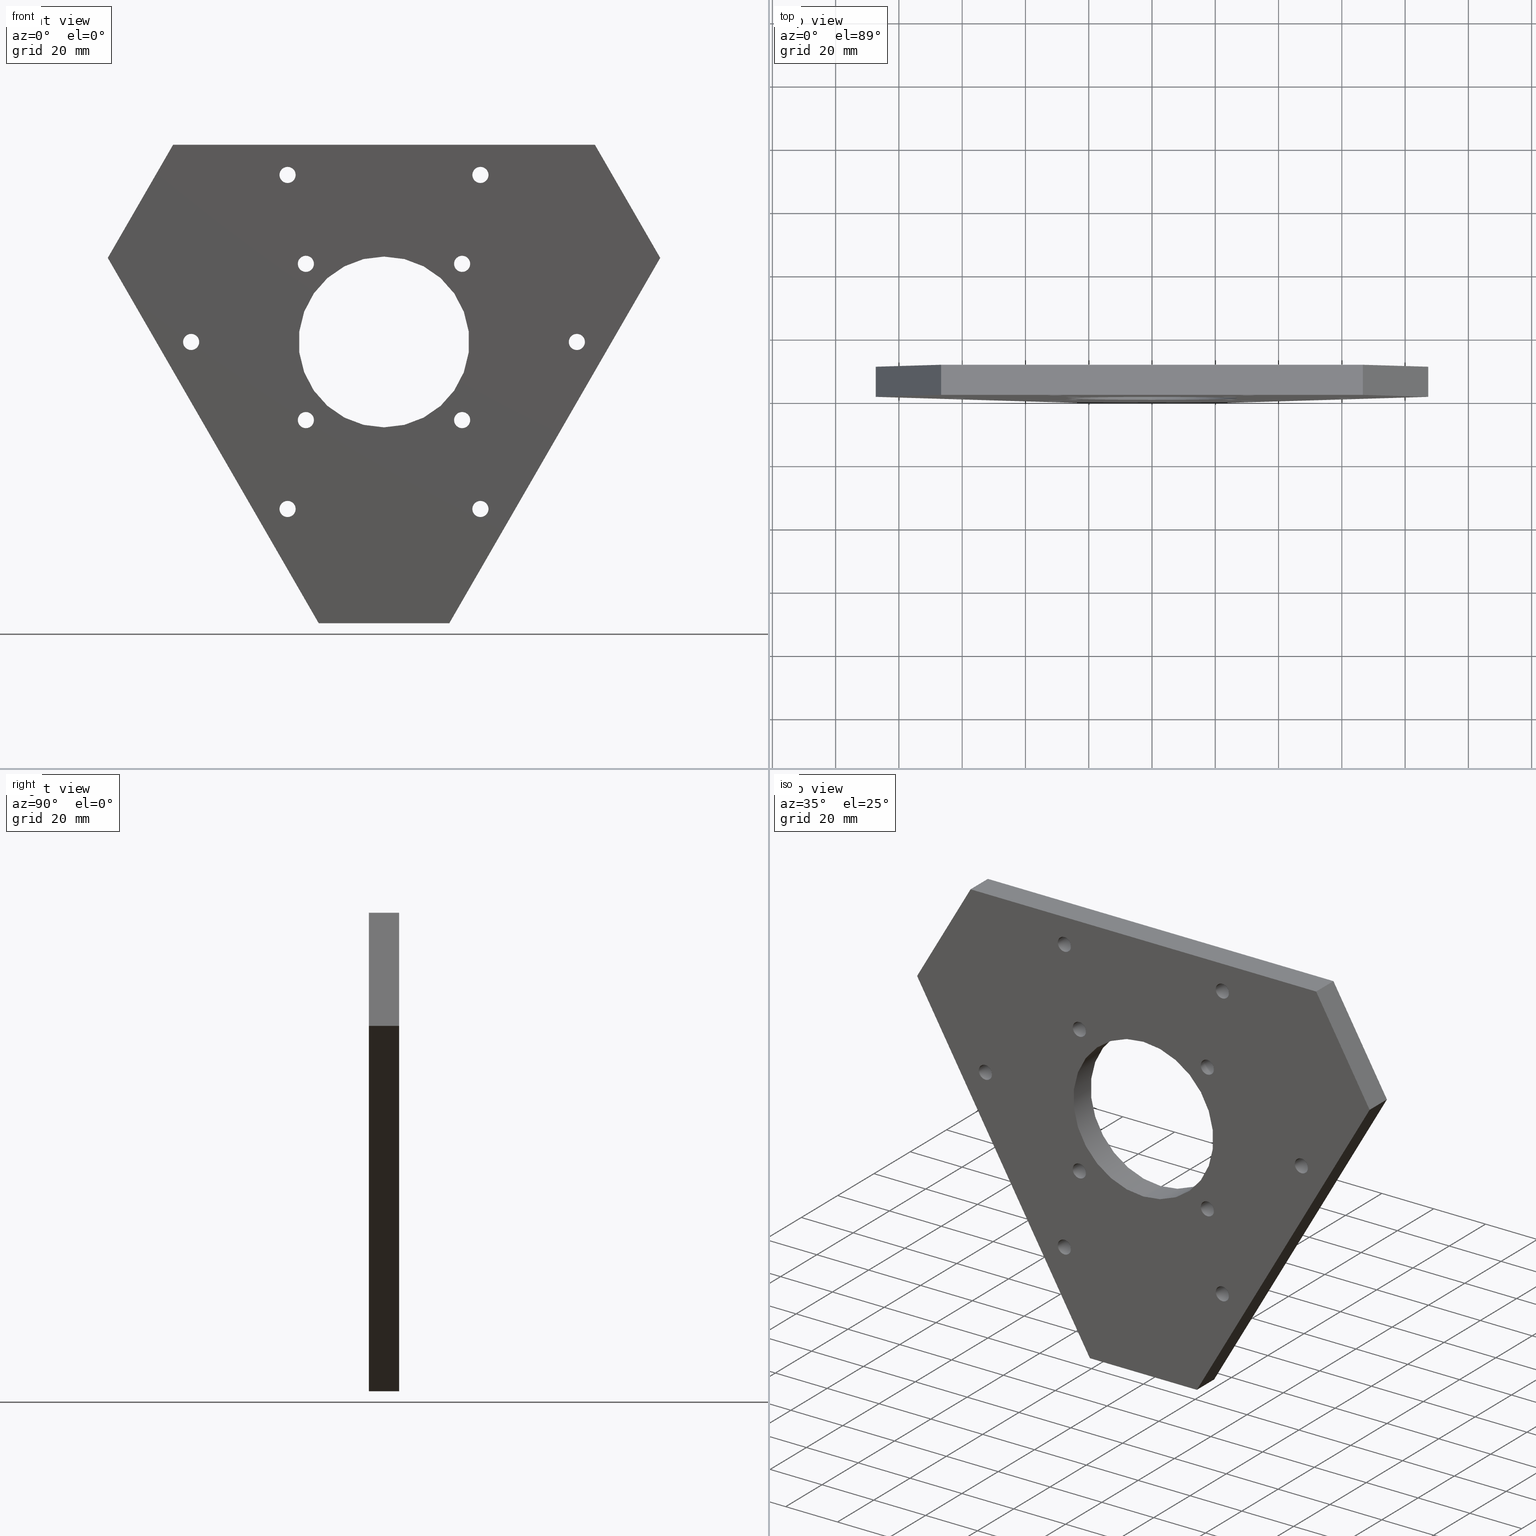
[diagram: canonical four-view strip — front | top / right | iso, engineering-drawing reading convention]
A machine part, canonical four-view strip (front | top / right | iso — engineering-drawing reading convention). The complete STEP part file that produces these views, byte-faithful:
ISO-10303-21;
HEADER;
FILE_DESCRIPTION (( 'STEP AP214' ),
    '1' );
FILE_NAME ('D0900773 AdvLIGO AOS Pier Table.STEP',
    '2009-07-01T22:18:25',
    ( 'LIGO' ),
    ( 'CALTECH' ),
    'SwSTEP 2.0',
    'SolidWorks 2009',
    '' );
FILE_SCHEMA (( 'AUTOMOTIVE_DESIGN' ));
ENDSEC;

DATA;
#1 = ADVANCED_FACE ( 'NONE', ( #961 ), #960, .F. ) ;
#2 = ADVANCED_FACE ( 'NONE', ( #959 ), #958, .F. ) ;
#3 = ADVANCED_FACE ( 'NONE', ( #957 ), #956, .F. ) ;
#4 = ADVANCED_FACE ( 'NONE', ( #955 ), #954, .F. ) ;
#5 = ADVANCED_FACE ( 'NONE', ( #953 ), #952, .F. ) ;
#6 = ADVANCED_FACE ( 'NONE', ( #951 ), #950, .F. ) ;
#7 = ADVANCED_FACE ( 'NONE', ( #949 ), #948, .F. ) ;
#8 = ADVANCED_FACE ( 'NONE', ( #947 ), #946, .F. ) ;
#9 = ADVANCED_FACE ( 'NONE', ( #945 ), #944, .F. ) ;
#10 = ADVANCED_FACE ( 'NONE', ( #943 ), #942, .F. ) ;
#11 = ADVANCED_FACE ( 'NONE', ( #941 ), #940, .F. ) ;
#12 = ADVANCED_FACE ( 'NONE', ( #939 ), #384, .F. ) ;
#13 = ADVANCED_FACE ( 'NONE', ( #938 ), #367, .F. ) ;
#14 = ADVANCED_FACE ( 'NONE', ( #937 ), #349, .F. ) ;
#15 = ADVANCED_FACE ( 'NONE', ( #936 ), #334, .F. ) ;
#16 = ADVANCED_FACE ( 'NONE', ( #935 ), #319, .F. ) ;
#17 = ADVANCED_FACE ( 'NONE', ( #934 ), #304, .F. ) ;
#18 = ADVANCED_FACE ( 'NONE', ( #933 ), #932, .F. ) ;
#19 = ADVANCED_FACE ( 'NONE', ( #931 ), #930, .F. ) ;
#20 = ADVANCED_FACE ( 'NONE', ( #929 ), #928, .F. ) ;
#21 = ADVANCED_FACE ( 'NONE', ( #927 ), #926, .F. ) ;
#22 = ADVANCED_FACE ( 'NONE', ( #925 ), #924, .F. ) ;
#23 = ADVANCED_FACE ( 'NONE', ( #923 ), #922, .F. ) ;
#24 = ADVANCED_FACE ( 'NONE', ( #921, #920, #919, #918, #917, #916, #915, #914, #913, #912, #911, #910 ), #229, .F. ) ;
#25 = ADVANCED_FACE ( 'NONE', ( #909, #908, #907, #906, #905, #904, #903, #902, #901, #900, #899, #898 ), #225, .T. ) ;
#26 = ADVANCED_FACE ( 'NONE', ( #897 ), #896, .F. ) ;
#27 = ADVANCED_FACE ( 'NONE', ( #895 ), #894, .F. ) ;
#28 = ADVANCED_FACE ( 'NONE', ( #893 ), #892, .F. ) ;
#29 = ADVANCED_FACE ( 'NONE', ( #891 ), #890, .F. ) ;
#30 = ADVANCED_FACE ( 'NONE', ( #889 ), #888, .F. ) ;
#31 = DIMENSIONAL_EXPONENTS ( 1.000000000000000000, 0.0000000000000000000, 0.0000000000000000000, 0.0000000000000000000, 0.0000000000000000000, 0.0000000000000000000, 0.0000000000000000000 ) ;
#32 = DIMENSIONAL_EXPONENTS ( 1.000000000000000000, 0.0000000000000000000, 0.0000000000000000000, 0.0000000000000000000, 0.0000000000000000000, 0.0000000000000000000, 0.0000000000000000000 ) ;
#33 = DIMENSIONAL_EXPONENTS ( 1.000000000000000000, 0.0000000000000000000, 0.0000000000000000000, 0.0000000000000000000, 0.0000000000000000000, 0.0000000000000000000, 0.0000000000000000000 ) ;
#34 = VERTEX_POINT ( 'NONE', #206 ) ;
#35 = CARTESIAN_POINT ( 'NONE',  ( -1.200000000000001500, 0.0000000000000000000, 2.078460969082651700 ) ) ;
#36 = VERTEX_POINT ( 'NONE', #205 ) ;
#37 = VERTEX_POINT ( 'NONE', #204 ) ;
#38 = VERTEX_POINT ( 'NONE', #203 ) ;
#39 = VERTEX_POINT ( 'NONE', #202 ) ;
#40 = VERTEX_POINT ( 'NONE', #201 ) ;
#41 = VERTEX_POINT ( 'NONE', #200 ) ;
#42 = VERTEX_POINT ( 'NONE', #199 ) ;
#43 = VERTEX_POINT ( 'NONE', #198 ) ;
#44 = VERTEX_POINT ( 'NONE', #197 ) ;
#45 = VERTEX_POINT ( 'NONE', #196 ) ;
#46 = VERTEX_POINT ( 'NONE', #195 ) ;
#47 = DIRECTION ( 'NONE',  ( -0.0000000000000000000, 1.000000000000000000, -0.0000000000000000000 ) ) ;
#48 = VERTEX_POINT ( 'NONE', #194 ) ;
#49 = VERTEX_POINT ( 'NONE', #193 ) ;
#50 = VERTEX_POINT ( 'NONE', #192 ) ;
#51 = VERTEX_POINT ( 'NONE', #191 ) ;
#52 = VERTEX_POINT ( 'NONE', #190 ) ;
#53 = VERTEX_POINT ( 'NONE', #189 ) ;
#54 = VERTEX_POINT ( 'NONE', #188 ) ;
#55 = VERTEX_POINT ( 'NONE', #187 ) ;
#56 = VERTEX_POINT ( 'NONE', #186 ) ;
#57 = VERTEX_POINT ( 'NONE', #185 ) ;
#58 = VERTEX_POINT ( 'NONE', #184 ) ;
#59 = VERTEX_POINT ( 'NONE', #183 ) ;
#60 = CARTESIAN_POINT ( 'NONE',  ( 1.200000000000003100, 0.3750000000000000600, 2.178960969082650600 ) ) ;
#61 = VERTEX_POINT ( 'NONE', #182 ) ;
#62 = VERTEX_POINT ( 'NONE', #181 ) ;
#63 = VERTEX_POINT ( 'NONE', #180 ) ;
#64 = VERTEX_POINT ( 'NONE', #179 ) ;
#65 = VERTEX_POINT ( 'NONE', #178 ) ;
#66 = VERTEX_POINT ( 'NONE', #177 ) ;
#67 = VERTEX_POINT ( 'NONE', #176 ) ;
#68 = VERTEX_POINT ( 'NONE', #175 ) ;
#69 = VERTEX_POINT ( 'NONE', #174 ) ;
#70 = VERTEX_POINT ( 'NONE', #173 ) ;
#71 = VERTEX_POINT ( 'NONE', #172 ) ;
#72 = VERTEX_POINT ( 'NONE', #171 ) ;
#73 = VERTEX_POINT ( 'NONE', #170 ) ;
#74 = VERTEX_POINT ( 'NONE', #169 ) ;
#75 = VERTEX_POINT ( 'NONE', #168 ) ;
#76 = VERTEX_POINT ( 'NONE', #167 ) ;
#77 = VERTEX_POINT ( 'NONE', #166 ) ;
#78 = VERTEX_POINT ( 'NONE', #165 ) ;
#79 = DIRECTION ( 'NONE',  ( 0.0000000000000000000, 0.0000000000000000000, 1.000000000000000000 ) ) ;
#80 = VERTEX_POINT ( 'NONE', #164 ) ;
#81 = DIRECTION ( 'NONE',  ( -0.0000000000000000000, 1.000000000000000000, -0.0000000000000000000 ) ) ;
#82 = VERTEX_POINT ( 'NONE', #163 ) ;
#83 = VERTEX_POINT ( 'NONE', #162 ) ;
#84 = VERTEX_POINT ( 'NONE', #161 ) ;
#85 = VERTEX_POINT ( 'NONE', #160 ) ;
#86 = CARTESIAN_POINT ( 'NONE',  ( 1.200000000000003100, 0.3750000000000001100, 2.078460969082650800 ) ) ;
#87 = VERTEX_POINT ( 'NONE', #159 ) ;
#88 = VERTEX_POINT ( 'NONE', #158 ) ;
#89 = DIRECTION ( 'NONE',  ( -0.0000000000000000000, 1.000000000000000000, -0.0000000000000000000 ) ) ;
#90 = VERTEX_POINT ( 'NONE', #157 ) ;
#91 = VERTEX_POINT ( 'NONE', #156 ) ;
#92 = CARTESIAN_POINT ( 'NONE',  ( 1.200000000000003100, 0.3750000000000000600, 1.977960969082651400 ) ) ;
#93 = VERTEX_POINT ( 'NONE', #155 ) ;
#94 = VERTEX_POINT ( 'NONE', #154 ) ;
#95 = DIRECTION ( 'NONE',  ( 0.0000000000000000000, 0.0000000000000000000, 1.000000000000000000 ) ) ;
#96 = DIRECTION ( 'NONE',  ( -0.0000000000000000000, 1.000000000000000000, -0.0000000000000000000 ) ) ;
#97 = CARTESIAN_POINT ( 'NONE',  ( 1.200000000000003100, 0.0000000000000000000, 2.078460969082650800 ) ) ;
#98 = VERTEX_POINT ( 'NONE', #153 ) ;
#99 = VERTEX_POINT ( 'NONE', #152 ) ;
#100 = VERTEX_POINT ( 'NONE', #151 ) ;
#101 = CARTESIAN_POINT ( 'NONE',  ( -0.9722718241315313500, 0.3750000000000000600, -0.9722718241314736200 ) ) ;
#102 = DIRECTION ( 'NONE',  ( -0.0000000000000000000, 1.000000000000000000, -0.0000000000000000000 ) ) ;
#103 = DIRECTION ( 'NONE',  ( -0.0000000000000000000, 1.000000000000000000, -0.0000000000000000000 ) ) ;
#104 = CARTESIAN_POINT ( 'NONE',  ( 0.9722718241314738400, 0.3750000000000000600, -0.8717718241315044500 ) ) ;
#105 = CARTESIAN_POINT ( 'NONE',  ( 0.9722718241314738400, 0.3750000000000000600, -0.9722718241315043700 ) ) ;
#106 = DIRECTION ( 'NONE',  ( 0.0000000000000000000, 0.0000000000000000000, 1.000000000000000000 ) ) ;
#107 = DIRECTION ( 'NONE',  ( 0.0000000000000000000, 0.0000000000000000000, 1.000000000000000000 ) ) ;
#108 = DIRECTION ( 'NONE',  ( -0.0000000000000000000, 1.000000000000000000, -0.0000000000000000000 ) ) ;
#109 = CARTESIAN_POINT ( 'NONE',  ( 0.9722718241314738400, 0.3750000000000000600, -0.9722718241315043700 ) ) ;
#110 = DIRECTION ( 'NONE',  ( -0.0000000000000000000, 1.000000000000000000, -0.0000000000000000000 ) ) ;
#111 = CARTESIAN_POINT ( 'NONE',  ( 0.9722718241314738400, 0.3750000000000000600, -1.072771824131504300 ) ) ;
#112 = DIRECTION ( 'NONE',  ( 0.0000000000000000000, 0.0000000000000000000, 1.000000000000000000 ) ) ;
#113 = DIRECTION ( 'NONE',  ( -0.0000000000000000000, 1.000000000000000000, -0.0000000000000000000 ) ) ;
#114 = CARTESIAN_POINT ( 'NONE',  ( 0.9722718241314738400, -2.048885995248197400E-016, -0.9722718241315043700 ) ) ;
#115 = DIRECTION ( 'NONE',  ( -0.0000000000000000000, 1.000000000000000000, -0.0000000000000000000 ) ) ;
#116 = CARTESIAN_POINT ( 'NONE',  ( -0.9722718241315313500, 0.3750000000000000600, -0.8717718241314736900 ) ) ;
#117 = DIRECTION ( 'NONE',  ( 0.0000000000000000000, 0.0000000000000000000, 1.000000000000000000 ) ) ;
#118 = DIRECTION ( 'NONE',  ( -0.0000000000000000000, 1.000000000000000000, -0.0000000000000000000 ) ) ;
#119 = CARTESIAN_POINT ( 'NONE',  ( -0.9722718241315313500, 0.3750000000000000600, -0.9722718241314736200 ) ) ;
#120 = DIRECTION ( 'NONE',  ( -0.0000000000000000000, 1.000000000000000000, -0.0000000000000000000 ) ) ;
#121 = CARTESIAN_POINT ( 'NONE',  ( -0.9722718241315313500, 0.3750000000000000600, -1.072771824131473400 ) ) ;
#122 = DIRECTION ( 'NONE',  ( 0.0000000000000000000, 0.0000000000000000000, 1.000000000000000000 ) ) ;
#123 = DIRECTION ( 'NONE',  ( -0.0000000000000000000, 1.000000000000000000, -0.0000000000000000000 ) ) ;
#124 = CARTESIAN_POINT ( 'NONE',  ( -0.9722718241315313500, -2.048885995248197400E-016, -0.9722718241314736200 ) ) ;
#125 = DIRECTION ( 'NONE',  ( -0.0000000000000000000, 1.000000000000000000, -0.0000000000000000000 ) ) ;
#126 = CARTESIAN_POINT ( 'NONE',  ( -0.9722718241315005900, 0.3750000000000000600, 1.072771824131531600 ) ) ;
#127 = DIRECTION ( 'NONE',  ( 0.0000000000000000000, 0.0000000000000000000, 1.000000000000000000 ) ) ;
#128 = DIRECTION ( 'NONE',  ( -0.0000000000000000000, 1.000000000000000000, -0.0000000000000000000 ) ) ;
#129 = CARTESIAN_POINT ( 'NONE',  ( -0.9722718241315005900, 0.3750000000000000600, 0.9722718241315316800 ) ) ;
#130 = DIRECTION ( 'NONE',  ( -0.0000000000000000000, 1.000000000000000000, -0.0000000000000000000 ) ) ;
#131 = CARTESIAN_POINT ( 'NONE',  ( -0.9722718241315005900, 0.3750000000000000600, 0.8717718241315317600 ) ) ;
#132 = DIRECTION ( 'NONE',  ( 0.0000000000000000000, 0.0000000000000000000, 1.000000000000000000 ) ) ;
#133 = DIRECTION ( 'NONE',  ( -0.0000000000000000000, 1.000000000000000000, -0.0000000000000000000 ) ) ;
#134 = CARTESIAN_POINT ( 'NONE',  ( -0.9722718241315005900, -2.048885995248197400E-016, 0.9722718241315316800 ) ) ;
#135 = DIRECTION ( 'NONE',  ( -0.0000000000000000000, 1.000000000000000000, -0.0000000000000000000 ) ) ;
#136 = CARTESIAN_POINT ( 'NONE',  ( 0.9722718241315045900, 0.3750000000000000600, 1.072771824131500700 ) ) ;
#137 = DIRECTION ( 'NONE',  ( 0.0000000000000000000, 0.0000000000000000000, 1.000000000000000000 ) ) ;
#138 = DIRECTION ( 'NONE',  ( -0.0000000000000000000, 1.000000000000000000, -0.0000000000000000000 ) ) ;
#139 = CARTESIAN_POINT ( 'NONE',  ( 0.9722718241315045900, 0.3750000000000000600, 0.9722718241315009300 ) ) ;
#140 = DIRECTION ( 'NONE',  ( 0.0000000000000000000, 0.0000000000000000000, 1.000000000000000000 ) ) ;
#141 = DIRECTION ( 'NONE',  ( -0.0000000000000000000, 1.000000000000000000, -0.0000000000000000000 ) ) ;
#142 = DIRECTION ( 'NONE',  ( -0.0000000000000000000, 1.000000000000000000, -0.0000000000000000000 ) ) ;
#143 = CARTESIAN_POINT ( 'NONE',  ( -0.9722718241315005900, 0.3750000000000000600, 0.9722718241315316800 ) ) ;
#144 = CARTESIAN_POINT ( 'NONE',  ( 0.9722718241315045900, 0.3750000000000000600, 0.8717718241315010100 ) ) ;
#145 = DIRECTION ( 'NONE',  ( 0.0000000000000000000, 0.0000000000000000000, 1.000000000000000000 ) ) ;
#146 = DIRECTION ( 'NONE',  ( -0.0000000000000000000, 1.000000000000000000, -0.0000000000000000000 ) ) ;
#147 = DIRECTION ( 'NONE',  ( 0.0000000000000000000, 0.0000000000000000000, 1.000000000000000000 ) ) ;
#148 = CARTESIAN_POINT ( 'NONE',  ( 0.9722718241315045900, 0.3750000000000000600, 0.9722718241315009300 ) ) ;
#149 = DIRECTION ( 'NONE',  ( -0.0000000000000000000, 1.000000000000000000, -0.0000000000000000000 ) ) ;
#150 = CARTESIAN_POINT ( 'NONE',  ( 0.9722718241315045900, -2.048885995248197400E-016, 0.9722718241315009300 ) ) ;
#151 = CARTESIAN_POINT ( 'NONE',  ( 0.0000000000000000000, 0.0000000000000000000, -1.062500000000000000 ) ) ;
#152 = CARTESIAN_POINT ( 'NONE',  ( -2.624785217660711800, 0.0000000000000000000, 2.453738644055909900 ) ) ;
#153 = CARTESIAN_POINT ( 'NONE',  ( 1.301187224094062400E-016, 0.0000000000000000000, 1.062500000000000000 ) ) ;
#154 = CARTESIAN_POINT ( 'NONE',  ( 1.301187224094062400E-016, 0.3750000000000000600, 1.062500000000000000 ) ) ;
#155 = CARTESIAN_POINT ( 'NONE',  ( 0.0000000000000000000, 0.3750000000000000600, -1.062500000000000000 ) ) ;
#156 = CARTESIAN_POINT ( 'NONE',  ( 2.400000000000000400, 0.3750000000000001100, 0.1005000000000238300 ) ) ;
#157 = CARTESIAN_POINT ( 'NONE',  ( 2.400000000000000400, 0.3750000000000001100, -0.1004999999999749300 ) ) ;
#158 = CARTESIAN_POINT ( 'NONE',  ( 2.400000000000000400, 0.0000000000000000000, 0.1005000000000243800 ) ) ;
#159 = CARTESIAN_POINT ( 'NONE',  ( 2.400000000000000400, 0.0000000000000000000, -0.1004999999999754700 ) ) ;
#160 = CARTESIAN_POINT ( 'NONE',  ( 1.199999999999939300, 0.3750000000000001100, -1.977960969082656500 ) ) ;
#161 = CARTESIAN_POINT ( 'NONE',  ( 1.199999999999939300, 0.3750000000000001100, -2.178960969082655500 ) ) ;
#162 = CARTESIAN_POINT ( 'NONE',  ( 1.199999999999939300, 0.0000000000000000000, -1.977960969082655800 ) ) ;
#163 = CARTESIAN_POINT ( 'NONE',  ( 1.199999999999939300, 0.0000000000000000000, -2.178960969082655900 ) ) ;
#164 = CARTESIAN_POINT ( 'NONE',  ( -1.200000000000061000, 0.3750000000000001100, -1.977960969082619000 ) ) ;
#165 = CARTESIAN_POINT ( 'NONE',  ( -1.200000000000061000, 0.3750000000000001100, -2.178960969082618200 ) ) ;
#166 = CARTESIAN_POINT ( 'NONE',  ( -1.200000000000061000, 0.0000000000000000000, -2.178960969082618600 ) ) ;
#167 = CARTESIAN_POINT ( 'NONE',  ( -2.400000000000029200, 0.3750000000000001100, 0.1005000000000526200 ) ) ;
#168 = CARTESIAN_POINT ( 'NONE',  ( -0.9722718241315313500, -2.048885995248197400E-016, -0.8717718241314736900 ) ) ;
#169 = CARTESIAN_POINT ( 'NONE',  ( -0.9722718241315005900, 0.3750000000000000600, 0.8717718241315317600 ) ) ;
#170 = CARTESIAN_POINT ( 'NONE',  ( -2.400000000000029200, 0.3750000000000001100, -0.1004999999999466900 ) ) ;
#171 = CARTESIAN_POINT ( 'NONE',  ( -0.9722718241315005900, -2.048885995248197400E-016, 1.072771824131531600 ) ) ;
#172 = CARTESIAN_POINT ( 'NONE',  ( -0.9722718241315005900, 0.3750000000000000600, 1.072771824131531600 ) ) ;
#173 = CARTESIAN_POINT ( 'NONE',  ( -0.9722718241315313500, -2.048885995248197400E-016, -1.072771824131473400 ) ) ;
#174 = CARTESIAN_POINT ( 'NONE',  ( -2.400000000000029200, 0.0000000000000000000, 0.1005000000000528900 ) ) ;
#175 = CARTESIAN_POINT ( 'NONE',  ( -2.400000000000029200, 0.0000000000000000000, -0.1004999999999469700 ) ) ;
#176 = CARTESIAN_POINT ( 'NONE',  ( -1.200000000000001500, 0.3750000000000001100, 2.178960969082651000 ) ) ;
#177 = CARTESIAN_POINT ( 'NONE',  ( -1.200000000000001500, 0.3750000000000001100, 1.977960969082651800 ) ) ;
#178 = CARTESIAN_POINT ( 'NONE',  ( -1.200000000000001500, 0.0000000000000000000, 2.178960969082651500 ) ) ;
#179 = CARTESIAN_POINT ( 'NONE',  ( -1.200000000000001500, 0.0000000000000000000, 1.977960969082651600 ) ) ;
#180 = CARTESIAN_POINT ( 'NONE',  ( 1.200000000000003100, 0.3750000000000001100, 2.178960969082650600 ) ) ;
#181 = CARTESIAN_POINT ( 'NONE',  ( 1.200000000000003100, 0.3750000000000001100, 1.977960969082651400 ) ) ;
#182 = CARTESIAN_POINT ( 'NONE',  ( 1.200000000000003100, 0.0000000000000000000, 2.178960969082651000 ) ) ;
#183 = CARTESIAN_POINT ( 'NONE',  ( 0.9722718241314738400, 0.3750000000000000600, -0.8717718241315044500 ) ) ;
#184 = CARTESIAN_POINT ( 'NONE',  ( 0.9722718241314738400, 0.3750000000000000600, -1.072771824131504300 ) ) ;
#185 = CARTESIAN_POINT ( 'NONE',  ( 0.9722718241314738400, -2.048885995248197400E-016, -0.8717718241315044500 ) ) ;
#186 = CARTESIAN_POINT ( 'NONE',  ( 0.9722718241314738400, -2.048885995248197400E-016, -1.072771824131504300 ) ) ;
#187 = CARTESIAN_POINT ( 'NONE',  ( -0.9722718241315313500, 0.3750000000000000600, -0.8717718241314736900 ) ) ;
#188 = CARTESIAN_POINT ( 'NONE',  ( -0.9722718241315313500, 0.3750000000000000600, -1.072771824131473400 ) ) ;
#189 = CARTESIAN_POINT ( 'NONE',  ( 0.9722718241315045900, 0.3750000000000000600, 0.8717718241315010100 ) ) ;
#190 = CARTESIAN_POINT ( 'NONE',  ( -0.9722718241315005900, -2.048885995248197400E-016, 0.8717718241315317600 ) ) ;
#191 = CARTESIAN_POINT ( 'NONE',  ( 0.9722718241315045900, 0.3750000000000000600, 1.072771824131500700 ) ) ;
#192 = CARTESIAN_POINT ( 'NONE',  ( 1.200000000000003100, 0.0000000000000000000, 1.977960969082651000 ) ) ;
#193 = CARTESIAN_POINT ( 'NONE',  ( 0.8126073911696439800, 0.0000000000000000000, -3.500000000000000000 ) ) ;
#194 = CARTESIAN_POINT ( 'NONE',  ( -0.8126073911696442000, 0.3750000000000000600, -3.500000000000000400 ) ) ;
#195 = CARTESIAN_POINT ( 'NONE',  ( 0.8126073911696439800, 0.3750000000000000600, -3.500000000000000000 ) ) ;
#196 = CARTESIAN_POINT ( 'NONE',  ( -1.200000000000061000, 0.0000000000000000000, -1.977960969082618800 ) ) ;
#197 = CARTESIAN_POINT ( 'NONE',  ( 0.9722718241315045900, -2.048885995248197400E-016, 1.072771824131500700 ) ) ;
#198 = CARTESIAN_POINT ( 'NONE',  ( 0.9722718241315045900, -2.048885995248197400E-016, 0.8717718241315010100 ) ) ;
#199 = CARTESIAN_POINT ( 'NONE',  ( -3.437392608830355900, 0.3750000000000000600, 1.046261355944089000 ) ) ;
#200 = CARTESIAN_POINT ( 'NONE',  ( -2.624785217660711800, 0.3750000000000000600, 2.453738644055909900 ) ) ;
#201 = CARTESIAN_POINT ( 'NONE',  ( -3.437392608830355900, 0.0000000000000000000, 1.046261355944089000 ) ) ;
#202 = CARTESIAN_POINT ( 'NONE',  ( -0.8126073911696442000, 0.0000000000000000000, -3.500000000000000400 ) ) ;
#203 = CARTESIAN_POINT ( 'NONE',  ( 2.624785217660712300, 0.3750000000000000600, 2.453738644055909900 ) ) ;
#204 = CARTESIAN_POINT ( 'NONE',  ( 3.437392608830355900, 0.3750000000000000600, 1.046261355944088800 ) ) ;
#205 = CARTESIAN_POINT ( 'NONE',  ( 3.437392608830355900, 0.0000000000000000000, 1.046261355944088800 ) ) ;
#206 = CARTESIAN_POINT ( 'NONE',  ( 2.624785217660712300, 0.0000000000000000000, 2.453738644055909900 ) ) ;
#207 = DIRECTION ( 'NONE',  ( 0.0000000000000000000, 0.0000000000000000000, 1.000000000000000000 ) ) ;
#208 = DIRECTION ( 'NONE',  ( -0.0000000000000000000, 1.000000000000000000, -0.0000000000000000000 ) ) ;
#209 = CARTESIAN_POINT ( 'NONE',  ( 1.199999999999939300, 0.3750000000000000600, -2.078460969082655700 ) ) ;
#210 = DIRECTION ( 'NONE',  ( 0.0000000000000000000, 0.0000000000000000000, 1.000000000000000000 ) ) ;
#211 = DIRECTION ( 'NONE',  ( -0.0000000000000000000, 1.000000000000000000, -0.0000000000000000000 ) ) ;
#212 = CARTESIAN_POINT ( 'NONE',  ( -1.200000000000061000, 0.3750000000000000600, -2.078460969082618800 ) ) ;
#213 = DIRECTION ( 'NONE',  ( 0.0000000000000000000, 0.0000000000000000000, 1.000000000000000000 ) ) ;
#214 = DIRECTION ( 'NONE',  ( -0.0000000000000000000, 1.000000000000000000, -0.0000000000000000000 ) ) ;
#215 = CARTESIAN_POINT ( 'NONE',  ( -2.400000000000029200, 0.3750000000000000600, 5.295852917287431900E-014 ) ) ;
#216 = DIRECTION ( 'NONE',  ( 0.0000000000000000000, 0.0000000000000000000, -1.000000000000000000 ) ) ;
#217 = DIRECTION ( 'NONE',  ( -0.0000000000000000000, -1.000000000000000000, -0.0000000000000000000 ) ) ;
#218 = CARTESIAN_POINT ( 'NONE',  ( 0.0000000000000000000, 0.3750000000000000600, 0.0000000000000000000 ) ) ;
#219 = DIRECTION ( 'NONE',  ( 0.0000000000000000000, 0.0000000000000000000, 1.000000000000000000 ) ) ;
#220 = DIRECTION ( 'NONE',  ( -0.0000000000000000000, 1.000000000000000000, -0.0000000000000000000 ) ) ;
#221 = CARTESIAN_POINT ( 'NONE',  ( 2.400000000000000400, 0.3750000000000000600, 2.445003954329515600E-014 ) ) ;
#222 = DIRECTION ( 'NONE',  ( 0.0000000000000000000, -0.0000000000000000000, 1.000000000000000000 ) ) ;
#223 = DIRECTION ( 'NONE',  ( 0.0000000000000000000, 1.000000000000000000, 0.0000000000000000000 ) ) ;
#224 = CARTESIAN_POINT ( 'NONE',  ( -2.624785217660711800, 0.3750000000000000600, 2.453738644055909900 ) ) ;
#225 = PLANE ( 'NONE',  #544 ) ;
#226 = DIRECTION ( 'NONE',  ( 0.0000000000000000000, -0.0000000000000000000, 1.000000000000000000 ) ) ;
#227 = DIRECTION ( 'NONE',  ( 0.0000000000000000000, 1.000000000000000000, 0.0000000000000000000 ) ) ;
#228 = CARTESIAN_POINT ( 'NONE',  ( -2.624785217660711800, 0.0000000000000000000, 2.453738644055909900 ) ) ;
#229 = PLANE ( 'NONE',  #545 ) ;
#230 = DIRECTION ( 'NONE',  ( 0.0000000000000000000, 0.0000000000000000000, 1.000000000000000000 ) ) ;
#231 = DIRECTION ( 'NONE',  ( -0.0000000000000000000, 1.000000000000000000, -0.0000000000000000000 ) ) ;
#232 = CARTESIAN_POINT ( 'NONE',  ( -1.200000000000001500, 0.3750000000000000600, 2.078460969082651700 ) ) ;
#233 = APPLICATION_PROTOCOL_DEFINITION ( 'draft international standard', 'automotive_design', 1998, #234 ) ;
#234 = APPLICATION_CONTEXT ( 'automotive_design' ) ;
#235 = PRODUCT_CONTEXT ( 'NONE', #237, 'mechanical' ) ;
#236 = APPLICATION_PROTOCOL_DEFINITION ( 'draft international standard', 'automotive_design', 1998, #237 ) ;
#237 = APPLICATION_CONTEXT ( 'automotive_design' ) ;
#238 = DIRECTION ( 'NONE',  ( 0.0000000000000000000, 0.0000000000000000000, 1.000000000000000000 ) ) ;
#239 = DIRECTION ( 'NONE',  ( -0.0000000000000000000, 1.000000000000000000, -0.0000000000000000000 ) ) ;
#240 = DIRECTION ( 'NONE',  ( 1.000000000000000000, 0.0000000000000000000, 0.0000000000000000000 ) ) ;
#241 = DIRECTION ( 'NONE',  ( 0.0000000000000000000, 0.0000000000000000000, 1.000000000000000000 ) ) ;
#242 = CARTESIAN_POINT ( 'NONE',  ( -0.9722718241315313500, 0.3750000000000000600, -0.9722718241314736200 ) ) ;
#243 = CARTESIAN_POINT ( 'NONE',  ( 0.0000000000000000000, 0.0000000000000000000, 0.0000000000000000000 ) ) ;
#244 =( NAMED_UNIT ( * ) SI_UNIT ( $, .STERADIAN. ) SOLID_ANGLE_UNIT ( ) );
#245 = DIRECTION ( 'NONE',  ( 0.0000000000000000000, 0.0000000000000000000, 1.000000000000000000 ) ) ;
#246 =( NAMED_UNIT ( * ) PLANE_ANGLE_UNIT ( ) SI_UNIT ( $, .RADIAN. ) );
#247 =( CONVERSION_BASED_UNIT ( 'INCH', #751 ) LENGTH_UNIT ( ) NAMED_UNIT ( #33 ) );
#248 = DIRECTION ( 'NONE',  ( -0.0000000000000000000, 1.000000000000000000, -0.0000000000000000000 ) ) ;
#249 =( LENGTH_UNIT ( ) NAMED_UNIT ( * ) SI_UNIT ( $, .METRE. ) );
#250 = SURFACE_STYLE_USAGE ( .BOTH. , #251 ) ;
#251 = SURFACE_SIDE_STYLE ('',( #754 ) ) ;
#252 = CARTESIAN_POINT ( 'NONE',  ( 0.9722718241314738400, 0.3750000000000000600, -0.9722718241315043700 ) ) ;
#253 = FILL_AREA_STYLE ('',( #254 ) ) ;
#254 = FILL_AREA_STYLE_COLOUR ( '', #755 ) ;
#255 = DIRECTION ( 'NONE',  ( 0.0000000000000000000, 0.0000000000000000000, 1.000000000000000000 ) ) ;
#256 =( NAMED_UNIT ( * ) SI_UNIT ( $, .STERADIAN. ) SOLID_ANGLE_UNIT ( ) );
#257 = DIRECTION ( 'NONE',  ( -0.0000000000000000000, 1.000000000000000000, -0.0000000000000000000 ) ) ;
#258 =( NAMED_UNIT ( * ) PLANE_ANGLE_UNIT ( ) SI_UNIT ( $, .RADIAN. ) );
#259 =( CONVERSION_BASED_UNIT ( 'INCH', #757 ) LENGTH_UNIT ( ) NAMED_UNIT ( #32 ) );
#260 =( LENGTH_UNIT ( ) NAMED_UNIT ( * ) SI_UNIT ( $, .METRE. ) );
#261 = CARTESIAN_POINT ( 'NONE',  ( 1.200000000000003100, 0.3750000000000000600, 2.078460969082650800 ) ) ;
#262 =( NAMED_UNIT ( * ) SI_UNIT ( $, .STERADIAN. ) SOLID_ANGLE_UNIT ( ) );
#263 =( NAMED_UNIT ( * ) PLANE_ANGLE_UNIT ( ) SI_UNIT ( $, .RADIAN. ) );
#264 =( CONVERSION_BASED_UNIT ( 'INCH', #759 ) LENGTH_UNIT ( ) NAMED_UNIT ( #31 ) );
#265 =( LENGTH_UNIT ( ) NAMED_UNIT ( * ) SI_UNIT ( $, .METRE. ) );
#266 = DIRECTION ( 'NONE',  ( 0.0000000000000000000, 0.0000000000000000000, 1.000000000000000000 ) ) ;
#267 = SURFACE_STYLE_USAGE ( .BOTH. , #268 ) ;
#268 = SURFACE_SIDE_STYLE ('',( #762 ) ) ;
#269 = DIRECTION ( 'NONE',  ( -0.0000000000000000000, 1.000000000000000000, -0.0000000000000000000 ) ) ;
#270 = FILL_AREA_STYLE ('',( #271 ) ) ;
#271 = FILL_AREA_STYLE_COLOUR ( '', #763 ) ;
#272 = DIRECTION ( 'NONE',  ( -0.0000000000000000000, -1.000000000000000000, -0.0000000000000000000 ) ) ;
#273 = CARTESIAN_POINT ( 'NONE',  ( -0.9722718241315005900, 0.3750000000000000600, 0.9722718241315316800 ) ) ;
#274 = CARTESIAN_POINT ( 'NONE',  ( -0.8126073911696442000, 0.3750000000000000600, -3.500000000000000400 ) ) ;
#275 = DIRECTION ( 'NONE',  ( -0.0000000000000000000, -1.000000000000000000, -0.0000000000000000000 ) ) ;
#276 = CARTESIAN_POINT ( 'NONE',  ( 0.8126073911696439800, 0.3750000000000000600, -3.500000000000000000 ) ) ;
#277 = DIRECTION ( 'NONE',  ( 0.0000000000000000000, 0.0000000000000000000, 1.000000000000000000 ) ) ;
#278 = DIRECTION ( 'NONE',  ( -0.0000000000000000000, 1.000000000000000000, -0.0000000000000000000 ) ) ;
#279 = DIRECTION ( 'NONE',  ( -0.0000000000000000000, -1.000000000000000000, -0.0000000000000000000 ) ) ;
#280 = CARTESIAN_POINT ( 'NONE',  ( 3.437392608830355900, 0.3750000000000000600, 1.046261355944088800 ) ) ;
#281 = DIRECTION ( 'NONE',  ( -0.0000000000000000000, -1.000000000000000000, -0.0000000000000000000 ) ) ;
#282 = CARTESIAN_POINT ( 'NONE',  ( 2.624785217660712300, 0.3750000000000000600, 2.453738644055909900 ) ) ;
#283 = DIRECTION ( 'NONE',  ( -0.0000000000000000000, -1.000000000000000000, -0.0000000000000000000 ) ) ;
#284 = CARTESIAN_POINT ( 'NONE',  ( -3.437392608830355900, 0.3750000000000000600, 1.046261355944089000 ) ) ;
#285 = DIRECTION ( 'NONE',  ( -0.0000000000000000000, -1.000000000000000000, -0.0000000000000000000 ) ) ;
#286 = CARTESIAN_POINT ( 'NONE',  ( -2.624785217660711800, 0.3750000000000000600, 2.453738644055909900 ) ) ;
#287 = DIRECTION ( 'NONE',  ( -0.0000000000000000000, 1.000000000000000000, -0.0000000000000000000 ) ) ;
#288 = DIRECTION ( 'NONE',  ( 0.0000000000000000000, 0.0000000000000000000, 1.000000000000000000 ) ) ;
#289 = DIRECTION ( 'NONE',  ( 0.0000000000000000000, 1.000000000000000000, 0.0000000000000000000 ) ) ;
#290 = CARTESIAN_POINT ( 'NONE',  ( 0.9722718241315045900, 0.3750000000000000600, 0.9722718241315009300 ) ) ;
#291 = CARTESIAN_POINT ( 'NONE',  ( 0.0000000000000000000, 0.0000000000000000000, 0.0000000000000000000 ) ) ;
#292 = DIRECTION ( 'NONE',  ( 1.000000000000000000, 0.0000000000000000000, 0.0000000000000000000 ) ) ;
#293 = CARTESIAN_POINT ( 'NONE',  ( -2.624785217660711800, 0.0000000000000000000, 2.453738644055909900 ) ) ;
#294 = DIRECTION ( 'NONE',  ( 0.4999999999999997200, 0.0000000000000000000, -0.8660254037844388200 ) ) ;
#295 = DIRECTION ( 'NONE',  ( 0.4999999999999998300, 0.0000000000000000000, -0.8660254037844386000 ) ) ;
#296 = CARTESIAN_POINT ( 'NONE',  ( 2.624785217660712300, 0.0000000000000000000, 2.453738644055909900 ) ) ;
#297 = DIRECTION ( 'NONE',  ( -0.4999999999999998900, 0.0000000000000000000, -0.8660254037844386000 ) ) ;
#298 = DIRECTION ( 'NONE',  ( 0.8660254037844387100, -0.0000000000000000000, 0.4999999999999998900 ) ) ;
#299 = CARTESIAN_POINT ( 'NONE',  ( 3.437392608830355900, 0.0000000000000000000, 1.046261355944088800 ) ) ;
#300 = DIRECTION ( 'NONE',  ( -1.000000000000000000, 0.0000000000000000000, -3.361830108057617300E-016 ) ) ;
#301 = CARTESIAN_POINT ( 'NONE',  ( -0.8126073911696442000, 0.3750000000000000600, -3.500000000000000400 ) ) ;
#302 = CARTESIAN_POINT ( 'NONE',  ( 0.8126073911696439800, 0.0000000000000000000, -3.500000000000000000 ) ) ;
#303 = DIRECTION ( 'NONE',  ( -0.4999999999999998300, 0.0000000000000000000, 0.8660254037844386000 ) ) ;
#304 = PLANE ( 'NONE',  #552 ) ;
#305 = CARTESIAN_POINT ( 'NONE',  ( -0.8126073911696442000, 0.0000000000000000000, -3.500000000000000400 ) ) ;
#306 = DIRECTION ( 'NONE',  ( 0.5000000000000000000, 0.0000000000000000000, 0.8660254037844386000 ) ) ;
#307 = CARTESIAN_POINT ( 'NONE',  ( -3.437392608830355900, 0.0000000000000000000, 1.046261355944089000 ) ) ;
#308 = DIRECTION ( 'NONE',  ( 0.0000000000000000000, 0.0000000000000000000, 1.000000000000000000 ) ) ;
#309 = DIRECTION ( 'NONE',  ( -1.000000000000000000, 0.0000000000000000000, -0.0000000000000000000 ) ) ;
#310 = DIRECTION ( 'NONE',  ( -0.0000000000000000000, 1.000000000000000000, -0.0000000000000000000 ) ) ;
#311 = CARTESIAN_POINT ( 'NONE',  ( 2.400000000000000400, 0.0000000000000000000, 2.445003954329515600E-014 ) ) ;
#312 = DIRECTION ( 'NONE',  ( 0.0000000000000000000, 0.0000000000000000000, -1.000000000000000000 ) ) ;
#313 = DIRECTION ( 'NONE',  ( 0.0000000000000000000, 0.0000000000000000000, 1.000000000000000000 ) ) ;
#314 = DIRECTION ( 'NONE',  ( -0.0000000000000000000, 1.000000000000000000, -0.0000000000000000000 ) ) ;
#315 = CARTESIAN_POINT ( 'NONE',  ( 1.199999999999939300, 0.0000000000000000000, -2.078460969082655700 ) ) ;
#316 = CARTESIAN_POINT ( 'NONE',  ( -2.624785217660711800, 0.3750000000000000600, 2.453738644055909900 ) ) ;
#317 = DIRECTION ( 'NONE',  ( 0.0000000000000000000, 0.0000000000000000000, 1.000000000000000000 ) ) ;
#318 = DIRECTION ( 'NONE',  ( -0.0000000000000000000, 1.000000000000000000, -0.0000000000000000000 ) ) ;
#319 = PLANE ( 'NONE',  #553 ) ;
#320 = CARTESIAN_POINT ( 'NONE',  ( -1.200000000000061000, 0.0000000000000000000, -2.078460969082618800 ) ) ;
#321 = DIRECTION ( 'NONE',  ( 0.0000000000000000000, 0.0000000000000000000, 1.000000000000000000 ) ) ;
#322 = DIRECTION ( 'NONE',  ( -0.0000000000000000000, 1.000000000000000000, -0.0000000000000000000 ) ) ;
#323 = CARTESIAN_POINT ( 'NONE',  ( -2.400000000000029200, 0.0000000000000000000, 5.295852917287431900E-014 ) ) ;
#324 = DIRECTION ( 'NONE',  ( -0.5000000000000000000, 0.0000000000000000000, -0.8660254037844386000 ) ) ;
#325 = DIRECTION ( 'NONE',  ( 0.0000000000000000000, 0.0000000000000000000, 1.000000000000000000 ) ) ;
#326 = DIRECTION ( 'NONE',  ( -0.0000000000000000000, 1.000000000000000000, -0.0000000000000000000 ) ) ;
#327 = CARTESIAN_POINT ( 'NONE',  ( -1.200000000000001500, 0.0000000000000000000, 2.078460969082651700 ) ) ;
#328 = DIRECTION ( 'NONE',  ( 0.8660254037844387100, 0.0000000000000000000, -0.5000000000000001100 ) ) ;
#329 = DIRECTION ( 'NONE',  ( 0.0000000000000000000, 0.0000000000000000000, 1.000000000000000000 ) ) ;
#330 = DIRECTION ( 'NONE',  ( -0.0000000000000000000, 1.000000000000000000, -0.0000000000000000000 ) ) ;
#331 = CARTESIAN_POINT ( 'NONE',  ( -3.437392608830355900, 0.3750000000000000600, 1.046261355944089000 ) ) ;
#332 = CARTESIAN_POINT ( 'NONE',  ( 1.200000000000003100, 0.0000000000000000000, 2.078460969082650800 ) ) ;
#333 = DIRECTION ( 'NONE',  ( 0.0000000000000000000, 0.0000000000000000000, 1.000000000000000000 ) ) ;
#334 = PLANE ( 'NONE',  #554 ) ;
#335 = DIRECTION ( 'NONE',  ( -0.0000000000000000000, 1.000000000000000000, -0.0000000000000000000 ) ) ;
#336 = CARTESIAN_POINT ( 'NONE',  ( 0.9722718241314738400, -2.048885995248197400E-016, -0.9722718241315043700 ) ) ;
#337 = DIRECTION ( 'NONE',  ( 0.0000000000000000000, 0.0000000000000000000, 1.000000000000000000 ) ) ;
#338 = DIRECTION ( 'NONE',  ( -0.0000000000000000000, 1.000000000000000000, -0.0000000000000000000 ) ) ;
#339 = CARTESIAN_POINT ( 'NONE',  ( -0.9722718241315313500, -2.048885995248197400E-016, -0.9722718241314736200 ) ) ;
#340 = DIRECTION ( 'NONE',  ( 1.000000000000000000, 0.0000000000000000000, 3.361830108057618300E-016 ) ) ;
#341 = DIRECTION ( 'NONE',  ( 0.0000000000000000000, 0.0000000000000000000, 1.000000000000000000 ) ) ;
#342 = DIRECTION ( 'NONE',  ( -0.0000000000000000000, 1.000000000000000000, -0.0000000000000000000 ) ) ;
#343 = DIRECTION ( 'NONE',  ( -3.361830108057618300E-016, 0.0000000000000000000, 1.000000000000000000 ) ) ;
#344 = CARTESIAN_POINT ( 'NONE',  ( -0.9722718241315005900, -2.048885995248197400E-016, 0.9722718241315316800 ) ) ;
#345 = DIRECTION ( 'NONE',  ( 0.0000000000000000000, 0.0000000000000000000, 1.000000000000000000 ) ) ;
#346 = CARTESIAN_POINT ( 'NONE',  ( 0.8126073911696439800, 0.3750000000000000600, -3.500000000000000000 ) ) ;
#347 = DIRECTION ( 'NONE',  ( -0.0000000000000000000, 1.000000000000000000, -0.0000000000000000000 ) ) ;
#348 = CARTESIAN_POINT ( 'NONE',  ( 0.9722718241315045900, -2.048885995248197400E-016, 0.9722718241315009300 ) ) ;
#349 = PLANE ( 'NONE',  #555 ) ;
#350 = DIRECTION ( 'NONE',  ( 0.0000000000000000000, 0.0000000000000000000, 1.000000000000000000 ) ) ;
#351 = DIRECTION ( 'NONE',  ( 0.0000000000000000000, 1.000000000000000000, 0.0000000000000000000 ) ) ;
#352 = CARTESIAN_POINT ( 'NONE',  ( 0.0000000000000000000, 0.3750000000000000600, 0.0000000000000000000 ) ) ;
#353 = DIRECTION ( 'NONE',  ( -0.4999999999999998300, 0.0000000000000000000, 0.8660254037844386000 ) ) ;
#354 = CARTESIAN_POINT ( 'NONE',  ( -0.8126073911696442000, 0.3750000000000000600, -3.500000000000000400 ) ) ;
#355 = DIRECTION ( 'NONE',  ( -1.000000000000000000, 0.0000000000000000000, -3.361830108057617300E-016 ) ) ;
#356 = DIRECTION ( 'NONE',  ( -0.4999999999999997200, 0.0000000000000000000, 0.8660254037844388200 ) ) ;
#357 = CARTESIAN_POINT ( 'NONE',  ( 0.8126073911696439800, 0.3750000000000000600, -3.500000000000000000 ) ) ;
#358 = DIRECTION ( 'NONE',  ( -0.4999999999999998900, 0.0000000000000000000, -0.8660254037844386000 ) ) ;
#359 = CARTESIAN_POINT ( 'NONE',  ( 3.437392608830355900, 0.3750000000000000600, 1.046261355944088800 ) ) ;
#360 = DIRECTION ( 'NONE',  ( -0.8660254037844388200, 0.0000000000000000000, -0.4999999999999997200 ) ) ;
#361 = DIRECTION ( 'NONE',  ( 0.4999999999999997200, 0.0000000000000000000, -0.8660254037844388200 ) ) ;
#362 = CARTESIAN_POINT ( 'NONE',  ( 2.624785217660712300, 0.3750000000000000600, 2.453738644055909900 ) ) ;
#363 = CARTESIAN_POINT ( 'NONE',  ( 2.624785217660712300, 0.3750000000000000600, 2.453738644055909900 ) ) ;
#364 = DIRECTION ( 'NONE',  ( 1.000000000000000000, 0.0000000000000000000, 0.0000000000000000000 ) ) ;
#365 = CARTESIAN_POINT ( 'NONE',  ( -2.624785217660711800, 0.3750000000000000600, 2.453738644055909900 ) ) ;
#366 = DIRECTION ( 'NONE',  ( 0.5000000000000000000, 0.0000000000000000000, 0.8660254037844386000 ) ) ;
#367 = PLANE ( 'NONE',  #556 ) ;
#368 = CARTESIAN_POINT ( 'NONE',  ( -3.437392608830355900, 0.3750000000000000600, 1.046261355944089000 ) ) ;
#369 = DIRECTION ( 'NONE',  ( 0.0000000000000000000, 0.0000000000000000000, 1.000000000000000000 ) ) ;
#370 = DIRECTION ( 'NONE',  ( -0.0000000000000000000, 1.000000000000000000, -0.0000000000000000000 ) ) ;
#371 = CARTESIAN_POINT ( 'NONE',  ( 2.400000000000000400, 0.3750000000000001100, 2.445003954329515600E-014 ) ) ;
#372 = DIRECTION ( 'NONE',  ( 0.0000000000000000000, 0.0000000000000000000, 1.000000000000000000 ) ) ;
#373 = DIRECTION ( 'NONE',  ( 0.4999999999999998900, 0.0000000000000000000, 0.8660254037844386000 ) ) ;
#374 = DIRECTION ( 'NONE',  ( -0.0000000000000000000, 1.000000000000000000, -0.0000000000000000000 ) ) ;
#375 = CARTESIAN_POINT ( 'NONE',  ( 1.199999999999939300, 0.3750000000000001100, -2.078460969082655700 ) ) ;
#376 = DIRECTION ( 'NONE',  ( -0.8660254037844387100, 0.0000000000000000000, 0.4999999999999999400 ) ) ;
#377 = DIRECTION ( 'NONE',  ( 0.0000000000000000000, 0.0000000000000000000, 1.000000000000000000 ) ) ;
#378 = DIRECTION ( 'NONE',  ( -0.0000000000000000000, 1.000000000000000000, -0.0000000000000000000 ) ) ;
#379 = CARTESIAN_POINT ( 'NONE',  ( -1.200000000000061000, 0.3750000000000001100, -2.078460969082618800 ) ) ;
#380 = CARTESIAN_POINT ( 'NONE',  ( 3.437392608830355900, 0.3750000000000000600, 1.046261355944088800 ) ) ;
#381 = DIRECTION ( 'NONE',  ( 0.0000000000000000000, 0.0000000000000000000, 1.000000000000000000 ) ) ;
#382 = DIRECTION ( 'NONE',  ( -0.0000000000000000000, 1.000000000000000000, -0.0000000000000000000 ) ) ;
#383 = CARTESIAN_POINT ( 'NONE',  ( -2.400000000000029200, 0.3750000000000001100, 5.295852917287431900E-014 ) ) ;
#384 = PLANE ( 'NONE',  #557 ) ;
#385 = DIRECTION ( 'NONE',  ( 0.0000000000000000000, 0.0000000000000000000, 1.000000000000000000 ) ) ;
#386 = DIRECTION ( 'NONE',  ( -0.0000000000000000000, 1.000000000000000000, -0.0000000000000000000 ) ) ;
#387 = CARTESIAN_POINT ( 'NONE',  ( -1.200000000000001500, 0.3750000000000001100, 2.078460969082651700 ) ) ;
#388 = DIRECTION ( 'NONE',  ( 0.0000000000000000000, 0.0000000000000000000, 1.000000000000000000 ) ) ;
#389 = DIRECTION ( 'NONE',  ( 0.0000000000000000000, 1.000000000000000000, 0.0000000000000000000 ) ) ;
#390 = CARTESIAN_POINT ( 'NONE',  ( 0.0000000000000000000, 0.0000000000000000000, 0.0000000000000000000 ) ) ;
#391 = DIRECTION ( 'NONE',  ( 0.0000000000000000000, 0.0000000000000000000, -1.000000000000000000 ) ) ;
#392 = DIRECTION ( 'NONE',  ( 0.0000000000000000000, 0.0000000000000000000, 1.000000000000000000 ) ) ;
#393 = DIRECTION ( 'NONE',  ( -0.0000000000000000000, 1.000000000000000000, -0.0000000000000000000 ) ) ;
#394 = CARTESIAN_POINT ( 'NONE',  ( 1.200000000000003100, 0.3750000000000001100, 2.078460969082650800 ) ) ;
#395 = DIRECTION ( 'NONE',  ( -0.0000000000000000000, -1.000000000000000000, -0.0000000000000000000 ) ) ;
#396 = DIRECTION ( 'NONE',  ( 0.0000000000000000000, 0.0000000000000000000, 1.000000000000000000 ) ) ;
#397 = DIRECTION ( 'NONE',  ( -0.0000000000000000000, 1.000000000000000000, -0.0000000000000000000 ) ) ;
#398 = CARTESIAN_POINT ( 'NONE',  ( 0.9722718241314738400, 0.3750000000000000600, -0.9722718241315043700 ) ) ;
#399 = CARTESIAN_POINT ( 'NONE',  ( 0.0000000000000000000, 0.3750000000000000600, 0.0000000000000000000 ) ) ;
#400 = DIRECTION ( 'NONE',  ( 0.0000000000000000000, 0.0000000000000000000, 1.000000000000000000 ) ) ;
#401 = DIRECTION ( 'NONE',  ( -0.0000000000000000000, 1.000000000000000000, -0.0000000000000000000 ) ) ;
#402 = CARTESIAN_POINT ( 'NONE',  ( -0.9722718241315313500, 0.3750000000000000600, -0.9722718241314736200 ) ) ;
#403 = DIRECTION ( 'NONE',  ( 0.0000000000000000000, 0.0000000000000000000, 1.000000000000000000 ) ) ;
#404 = DIRECTION ( 'NONE',  ( -0.0000000000000000000, 1.000000000000000000, -0.0000000000000000000 ) ) ;
#405 = DIRECTION ( 'NONE',  ( 0.0000000000000000000, 0.0000000000000000000, 1.000000000000000000 ) ) ;
#406 = CARTESIAN_POINT ( 'NONE',  ( -0.9722718241315005900, 0.3750000000000000600, 0.9722718241315316800 ) ) ;
#407 = DIRECTION ( 'NONE',  ( 0.0000000000000000000, 0.0000000000000000000, 1.000000000000000000 ) ) ;
#408 = DIRECTION ( 'NONE',  ( -0.0000000000000000000, 1.000000000000000000, -0.0000000000000000000 ) ) ;
#409 = DIRECTION ( 'NONE',  ( -0.0000000000000000000, 1.000000000000000000, -0.0000000000000000000 ) ) ;
#410 = CARTESIAN_POINT ( 'NONE',  ( 0.9722718241315045900, 0.3750000000000000600, 0.9722718241315009300 ) ) ;
#411 = DIRECTION ( 'NONE',  ( -0.0000000000000000000, -1.000000000000000000, -0.0000000000000000000 ) ) ;
#412 = CARTESIAN_POINT ( 'NONE',  ( 0.0000000000000000000, 0.3750000000000000600, -1.062500000000000000 ) ) ;
#413 = CARTESIAN_POINT ( 'NONE',  ( 2.400000000000000400, 0.3750000000000000600, 2.445003954329515600E-014 ) ) ;
#414 = DIRECTION ( 'NONE',  ( -0.0000000000000000000, -1.000000000000000000, -0.0000000000000000000 ) ) ;
#415 = CARTESIAN_POINT ( 'NONE',  ( 1.301187224094062400E-016, 0.3750000000000000600, 1.062500000000000000 ) ) ;
#416 = DIRECTION ( 'NONE',  ( 0.0000000000000000000, 0.0000000000000000000, 1.000000000000000000 ) ) ;
#417 = DIRECTION ( 'NONE',  ( 0.0000000000000000000, 1.000000000000000000, 0.0000000000000000000 ) ) ;
#418 = CARTESIAN_POINT ( 'NONE',  ( 0.0000000000000000000, 0.3750000000000000600, 0.0000000000000000000 ) ) ;
#419 = DIRECTION ( 'NONE',  ( 0.0000000000000000000, 0.0000000000000000000, 1.000000000000000000 ) ) ;
#420 = DIRECTION ( 'NONE',  ( -0.0000000000000000000, 1.000000000000000000, -0.0000000000000000000 ) ) ;
#421 = CARTESIAN_POINT ( 'NONE',  ( 2.400000000000000400, 0.3750000000000000600, 0.1005000000000241000 ) ) ;
#422 = DIRECTION ( 'NONE',  ( -0.0000000000000000000, 1.000000000000000000, -0.0000000000000000000 ) ) ;
#423 = DIRECTION ( 'NONE',  ( 0.0000000000000000000, 0.0000000000000000000, 1.000000000000000000 ) ) ;
#424 = DIRECTION ( 'NONE',  ( -0.0000000000000000000, 1.000000000000000000, -0.0000000000000000000 ) ) ;
#425 = CARTESIAN_POINT ( 'NONE',  ( 1.199999999999939300, 0.3750000000000000600, -2.078460969082655700 ) ) ;
#426 = CARTESIAN_POINT ( 'NONE',  ( 2.400000000000000400, 0.3750000000000001100, 2.445003954329515600E-014 ) ) ;
#427 = DIRECTION ( 'NONE',  ( -0.0000000000000000000, 1.000000000000000000, -0.0000000000000000000 ) ) ;
#428 = CARTESIAN_POINT ( 'NONE',  ( 2.400000000000000400, 0.3750000000000000600, -0.1004999999999752100 ) ) ;
#429 = DIRECTION ( 'NONE',  ( 0.0000000000000000000, 0.0000000000000000000, 1.000000000000000000 ) ) ;
#430 = DIRECTION ( 'NONE',  ( 0.0000000000000000000, 0.0000000000000000000, 1.000000000000000000 ) ) ;
#431 = DIRECTION ( 'NONE',  ( -0.0000000000000000000, 1.000000000000000000, -0.0000000000000000000 ) ) ;
#432 = CARTESIAN_POINT ( 'NONE',  ( 2.400000000000000400, 0.0000000000000000000, 2.445003954329515600E-014 ) ) ;
#433 = DIRECTION ( 'NONE',  ( -0.0000000000000000000, 1.000000000000000000, -0.0000000000000000000 ) ) ;
#434 = DIRECTION ( 'NONE',  ( -0.0000000000000000000, 1.000000000000000000, -0.0000000000000000000 ) ) ;
#435 = CARTESIAN_POINT ( 'NONE',  ( 1.199999999999939300, 0.3750000000000000600, -1.977960969082656300 ) ) ;
#436 = CARTESIAN_POINT ( 'NONE',  ( -1.200000000000061000, 0.3750000000000000600, -2.078460969082618800 ) ) ;
#437 = DIRECTION ( 'NONE',  ( 0.0000000000000000000, 0.0000000000000000000, 1.000000000000000000 ) ) ;
#438 = DIRECTION ( 'NONE',  ( -0.0000000000000000000, 1.000000000000000000, -0.0000000000000000000 ) ) ;
#439 = CARTESIAN_POINT ( 'NONE',  ( 1.199999999999939300, 0.3750000000000001100, -2.078460969082655700 ) ) ;
#440 = DIRECTION ( 'NONE',  ( -0.0000000000000000000, 1.000000000000000000, -0.0000000000000000000 ) ) ;
#441 = CARTESIAN_POINT ( 'NONE',  ( 1.199999999999939300, 0.3750000000000000600, -2.178960969082655500 ) ) ;
#442 = DIRECTION ( 'NONE',  ( 0.0000000000000000000, 0.0000000000000000000, 1.000000000000000000 ) ) ;
#443 = DIRECTION ( 'NONE',  ( 0.0000000000000000000, 0.0000000000000000000, 1.000000000000000000 ) ) ;
#444 = DIRECTION ( 'NONE',  ( -0.0000000000000000000, 1.000000000000000000, -0.0000000000000000000 ) ) ;
#445 = DIRECTION ( 'NONE',  ( -0.0000000000000000000, 1.000000000000000000, -0.0000000000000000000 ) ) ;
#446 = CARTESIAN_POINT ( 'NONE',  ( 1.199999999999939300, 0.0000000000000000000, -2.078460969082655700 ) ) ;
#447 = DIRECTION ( 'NONE',  ( -0.0000000000000000000, 1.000000000000000000, -0.0000000000000000000 ) ) ;
#448 = CARTESIAN_POINT ( 'NONE',  ( -2.400000000000029200, 0.3750000000000000600, 5.295852917287431900E-014 ) ) ;
#449 = CARTESIAN_POINT ( 'NONE',  ( -1.200000000000061000, 0.3750000000000000600, -1.977960969082619000 ) ) ;
#450 = DIRECTION ( 'NONE',  ( 0.0000000000000000000, 0.0000000000000000000, 1.000000000000000000 ) ) ;
#451 = DIRECTION ( 'NONE',  ( -0.0000000000000000000, 1.000000000000000000, -0.0000000000000000000 ) ) ;
#452 = CARTESIAN_POINT ( 'NONE',  ( -1.200000000000061000, 0.3750000000000001100, -2.078460969082618800 ) ) ;
#453 = DIRECTION ( 'NONE',  ( 0.0000000000000000000, 0.0000000000000000000, 1.000000000000000000 ) ) ;
#454 = DIRECTION ( 'NONE',  ( -0.0000000000000000000, 1.000000000000000000, -0.0000000000000000000 ) ) ;
#455 = CARTESIAN_POINT ( 'NONE',  ( -1.200000000000061000, 0.3750000000000000600, -2.178960969082618200 ) ) ;
#456 = DIRECTION ( 'NONE',  ( -0.0000000000000000000, 1.000000000000000000, -0.0000000000000000000 ) ) ;
#457 = DIRECTION ( 'NONE',  ( 0.0000000000000000000, 0.0000000000000000000, 1.000000000000000000 ) ) ;
#458 = DIRECTION ( 'NONE',  ( -0.0000000000000000000, 1.000000000000000000, -0.0000000000000000000 ) ) ;
#459 = CARTESIAN_POINT ( 'NONE',  ( -1.200000000000061000, 0.0000000000000000000, -2.078460969082618800 ) ) ;
#460 = CARTESIAN_POINT ( 'NONE',  ( -1.200000000000001500, 0.3750000000000000600, 2.078460969082651700 ) ) ;
#461 = DIRECTION ( 'NONE',  ( -0.0000000000000000000, 1.000000000000000000, -0.0000000000000000000 ) ) ;
#462 = CARTESIAN_POINT ( 'NONE',  ( -2.400000000000029200, 0.3750000000000000600, 0.1005000000000527600 ) ) ;
#463 = DIRECTION ( 'NONE',  ( 0.0000000000000000000, 0.0000000000000000000, 1.000000000000000000 ) ) ;
#464 = DIRECTION ( 'NONE',  ( -0.0000000000000000000, 1.000000000000000000, -0.0000000000000000000 ) ) ;
#465 = DIRECTION ( 'NONE',  ( 0.0000000000000000000, 0.0000000000000000000, 1.000000000000000000 ) ) ;
#466 = CARTESIAN_POINT ( 'NONE',  ( -2.400000000000029200, 0.3750000000000001100, 5.295852917287431900E-014 ) ) ;
#467 = DIRECTION ( 'NONE',  ( -0.0000000000000000000, 1.000000000000000000, -0.0000000000000000000 ) ) ;
#468 = DIRECTION ( 'NONE',  ( -0.0000000000000000000, 1.000000000000000000, -0.0000000000000000000 ) ) ;
#469 = CARTESIAN_POINT ( 'NONE',  ( -2.400000000000029200, 0.3750000000000000600, -0.1004999999999468300 ) ) ;
#470 = DIRECTION ( 'NONE',  ( 0.0000000000000000000, 0.0000000000000000000, 1.000000000000000000 ) ) ;
#471 = CARTESIAN_POINT ( 'NONE',  ( 1.200000000000003100, 0.3750000000000000600, 2.078460969082650800 ) ) ;
#472 = DIRECTION ( 'NONE',  ( -0.0000000000000000000, 1.000000000000000000, -0.0000000000000000000 ) ) ;
#473 = CARTESIAN_POINT ( 'NONE',  ( -2.400000000000029200, 0.0000000000000000000, 5.295852917287431900E-014 ) ) ;
#474 = DIRECTION ( 'NONE',  ( -0.0000000000000000000, 1.000000000000000000, -0.0000000000000000000 ) ) ;
#475 = CARTESIAN_POINT ( 'NONE',  ( -1.200000000000001500, 0.3750000000000000600, 2.178960969082651000 ) ) ;
#476 = DIRECTION ( 'NONE',  ( 0.0000000000000000000, 0.0000000000000000000, 1.000000000000000000 ) ) ;
#477 = DIRECTION ( 'NONE',  ( -0.0000000000000000000, 1.000000000000000000, -0.0000000000000000000 ) ) ;
#478 = DIRECTION ( 'NONE',  ( 0.0000000000000000000, 0.0000000000000000000, 1.000000000000000000 ) ) ;
#479 = CARTESIAN_POINT ( 'NONE',  ( -1.200000000000001500, 0.3750000000000001100, 2.078460969082651700 ) ) ;
#480 = DIRECTION ( 'NONE',  ( -0.0000000000000000000, 1.000000000000000000, -0.0000000000000000000 ) ) ;
#481 = CARTESIAN_POINT ( 'NONE',  ( -1.200000000000001500, 0.3750000000000000600, 1.977960969082651800 ) ) ;
#482 = DIRECTION ( 'NONE',  ( -0.0000000000000000000, 1.000000000000000000, -0.0000000000000000000 ) ) ;
#483 = DIRECTION ( 'NONE',  ( 0.0000000000000000000, 0.0000000000000000000, 1.000000000000000000 ) ) ;
#484 = PRODUCT ( 'D0900773 AdvLIGO AOS Pier Table', 'D0900773 AdvLIGO AOS Pier Table', '', ( #235 ) ) ;
#485 = PRODUCT_DEFINITION_CONTEXT ( 'detailed design', #234, 'design' ) ;
#486 = PRODUCT_DEFINITION_SHAPE ( 'NONE', 'NONE',  #489 ) ;
#487 = PRODUCT_RELATED_PRODUCT_CATEGORY ( 'part', '', ( #484 ) ) ;
#488 = PRODUCT_DEFINITION_FORMATION_WITH_SPECIFIED_SOURCE ( 'ANY', '', #484, .NOT_KNOWN. ) ;
#489 = PRODUCT_DEFINITION ( 'UNKNOWN', '', #488, #485 ) ;
#490 = AXIS2_PLACEMENT_3D ( 'NONE', #243, #241, #240 ) ;
#491 = MECHANICAL_DESIGN_GEOMETRIC_PRESENTATION_REPRESENTATION (  '', ( #752 ), #750 ) ;
#492 = PRESENTATION_LAYER_ASSIGNMENT (  '', '', ( #752 ) ) ;
#493 = MECHANICAL_DESIGN_GEOMETRIC_PRESENTATION_REPRESENTATION (  '', ( #760 ), #758 ) ;
#494 = PRESENTATION_LAYER_ASSIGNMENT (  '', '', ( #760 ) ) ;
#495 = AXIS2_PLACEMENT_3D ( 'NONE', #291, #289, #288 ) ;
#496 = AXIS2_PLACEMENT_3D ( 'NONE', #311, #310, #308 ) ;
#497 = AXIS2_PLACEMENT_3D ( 'NONE', #315, #314, #313 ) ;
#498 = AXIS2_PLACEMENT_3D ( 'NONE', #320, #318, #317 ) ;
#499 = AXIS2_PLACEMENT_3D ( 'NONE', #323, #322, #321 ) ;
#500 = AXIS2_PLACEMENT_3D ( 'NONE', #327, #326, #325 ) ;
#501 = AXIS2_PLACEMENT_3D ( 'NONE', #332, #330, #329 ) ;
#502 = AXIS2_PLACEMENT_3D ( 'NONE', #336, #335, #333 ) ;
#503 = AXIS2_PLACEMENT_3D ( 'NONE', #339, #338, #337 ) ;
#504 = AXIS2_PLACEMENT_3D ( 'NONE', #344, #342, #341 ) ;
#505 = AXIS2_PLACEMENT_3D ( 'NONE', #348, #347, #345 ) ;
#506 = AXIS2_PLACEMENT_3D ( 'NONE', #352, #351, #350 ) ;
#507 = AXIS2_PLACEMENT_3D ( 'NONE', #371, #370, #369 ) ;
#508 = AXIS2_PLACEMENT_3D ( 'NONE', #375, #374, #372 ) ;
#509 = AXIS2_PLACEMENT_3D ( 'NONE', #379, #378, #377 ) ;
#510 = AXIS2_PLACEMENT_3D ( 'NONE', #383, #382, #381 ) ;
#511 = AXIS2_PLACEMENT_3D ( 'NONE', #387, #386, #385 ) ;
#512 = AXIS2_PLACEMENT_3D ( 'NONE', #390, #389, #388 ) ;
#513 = AXIS2_PLACEMENT_3D ( 'NONE', #394, #393, #392 ) ;
#514 = AXIS2_PLACEMENT_3D ( 'NONE', #398, #397, #396 ) ;
#515 = AXIS2_PLACEMENT_3D ( 'NONE', #402, #401, #400 ) ;
#516 = AXIS2_PLACEMENT_3D ( 'NONE', #406, #404, #403 ) ;
#517 = AXIS2_PLACEMENT_3D ( 'NONE', #410, #408, #407 ) ;
#518 = AXIS2_PLACEMENT_3D ( 'NONE', #418, #417, #416 ) ;
#519 = AXIS2_PLACEMENT_3D ( 'NONE', #426, #424, #423 ) ;
#520 = AXIS2_PLACEMENT_3D ( 'NONE', #432, #431, #429 ) ;
#521 = AXIS2_PLACEMENT_3D ( 'NONE', #439, #438, #437 ) ;
#522 = AXIS2_PLACEMENT_3D ( 'NONE', #446, #444, #443 ) ;
#523 = AXIS2_PLACEMENT_3D ( 'NONE', #452, #451, #450 ) ;
#524 = AXIS2_PLACEMENT_3D ( 'NONE', #459, #458, #457 ) ;
#525 = AXIS2_PLACEMENT_3D ( 'NONE', #466, #464, #463 ) ;
#526 = AXIS2_PLACEMENT_3D ( 'NONE', #473, #472, #470 ) ;
#527 = AXIS2_PLACEMENT_3D ( 'NONE', #479, #477, #476 ) ;
#528 = AXIS2_PLACEMENT_3D ( 'NONE', #35, #278, #483 ) ;
#529 = AXIS2_PLACEMENT_3D ( 'NONE', #86, #81, #79 ) ;
#530 = AXIS2_PLACEMENT_3D ( 'NONE', #97, #96, #95 ) ;
#531 = AXIS2_PLACEMENT_3D ( 'NONE', #109, #108, #107 ) ;
#532 = AXIS2_PLACEMENT_3D ( 'NONE', #114, #113, #112 ) ;
#533 = AXIS2_PLACEMENT_3D ( 'NONE', #119, #118, #117 ) ;
#534 = AXIS2_PLACEMENT_3D ( 'NONE', #124, #123, #122 ) ;
#535 = AXIS2_PLACEMENT_3D ( 'NONE', #129, #128, #127 ) ;
#536 = AXIS2_PLACEMENT_3D ( 'NONE', #134, #133, #132 ) ;
#537 = AXIS2_PLACEMENT_3D ( 'NONE', #139, #138, #137 ) ;
#538 = AXIS2_PLACEMENT_3D ( 'NONE', #150, #149, #147 ) ;
#539 = AXIS2_PLACEMENT_3D ( 'NONE', #209, #208, #207 ) ;
#540 = AXIS2_PLACEMENT_3D ( 'NONE', #212, #211, #210 ) ;
#541 = AXIS2_PLACEMENT_3D ( 'NONE', #215, #214, #213 ) ;
#542 = AXIS2_PLACEMENT_3D ( 'NONE', #218, #217, #216 ) ;
#543 = AXIS2_PLACEMENT_3D ( 'NONE', #221, #220, #219 ) ;
#544 = AXIS2_PLACEMENT_3D ( 'NONE', #224, #223, #222 ) ;
#545 = AXIS2_PLACEMENT_3D ( 'NONE', #228, #227, #226 ) ;
#546 = AXIS2_PLACEMENT_3D ( 'NONE', #232, #231, #230 ) ;
#547 = AXIS2_PLACEMENT_3D ( 'NONE', #242, #239, #238 ) ;
#548 = AXIS2_PLACEMENT_3D ( 'NONE', #252, #248, #245 ) ;
#549 = AXIS2_PLACEMENT_3D ( 'NONE', #261, #257, #255 ) ;
#550 = AXIS2_PLACEMENT_3D ( 'NONE', #273, #269, #266 ) ;
#551 = AXIS2_PLACEMENT_3D ( 'NONE', #290, #287, #277 ) ;
#552 = AXIS2_PLACEMENT_3D ( 'NONE', #301, #298, #295 ) ;
#553 = AXIS2_PLACEMENT_3D ( 'NONE', #316, #312, #309 ) ;
#554 = AXIS2_PLACEMENT_3D ( 'NONE', #331, #328, #324 ) ;
#555 = AXIS2_PLACEMENT_3D ( 'NONE', #346, #343, #340 ) ;
#556 = AXIS2_PLACEMENT_3D ( 'NONE', #363, #360, #356 ) ;
#557 = AXIS2_PLACEMENT_3D ( 'NONE', #380, #376, #373 ) ;
#558 = AXIS2_PLACEMENT_3D ( 'NONE', #399, #395, #391 ) ;
#559 = AXIS2_PLACEMENT_3D ( 'NONE', #413, #409, #405 ) ;
#560 = AXIS2_PLACEMENT_3D ( 'NONE', #425, #422, #419 ) ;
#561 = AXIS2_PLACEMENT_3D ( 'NONE', #436, #433, #430 ) ;
#562 = AXIS2_PLACEMENT_3D ( 'NONE', #448, #445, #442 ) ;
#563 = AXIS2_PLACEMENT_3D ( 'NONE', #460, #456, #453 ) ;
#564 = AXIS2_PLACEMENT_3D ( 'NONE', #471, #468, #465 ) ;
#565 = AXIS2_PLACEMENT_3D ( 'NONE', #105, #482, #478 ) ;
#566 = AXIS2_PLACEMENT_3D ( 'NONE', #101, #103, #140 ) ;
#567 = AXIS2_PLACEMENT_3D ( 'NONE', #143, #141, #106 ) ;
#568 = AXIS2_PLACEMENT_3D ( 'NONE', #148, #146, #145 ) ;
#569 = EDGE_CURVE ( 'NONE', #43, #44, #886, .T. ) ;
#570 = EDGE_CURVE ( 'NONE', #43, #53, #887, .T. ) ;
#571 = EDGE_CURVE ( 'NONE', #53, #51, #883, .T. ) ;
#572 = EDGE_CURVE ( 'NONE', #44, #51, #884, .T. ) ;
#573 = EDGE_CURVE ( 'NONE', #52, #72, #880, .T. ) ;
#574 = EDGE_CURVE ( 'NONE', #52, #74, #881, .T. ) ;
#575 = EDGE_CURVE ( 'NONE', #74, #71, #877, .T. ) ;
#576 = EDGE_CURVE ( 'NONE', #72, #71, #878, .T. ) ;
#577 = EDGE_CURVE ( 'NONE', #70, #75, #874, .T. ) ;
#578 = EDGE_CURVE ( 'NONE', #70, #54, #875, .T. ) ;
#579 = EDGE_CURVE ( 'NONE', #54, #55, #871, .T. ) ;
#580 = EDGE_CURVE ( 'NONE', #75, #55, #872, .T. ) ;
#581 = EDGE_CURVE ( 'NONE', #56, #57, #868, .T. ) ;
#582 = EDGE_CURVE ( 'NONE', #56, #58, #869, .T. ) ;
#583 = EDGE_CURVE ( 'NONE', #58, #59, #865, .T. ) ;
#584 = EDGE_CURVE ( 'NONE', #57, #59, #866, .T. ) ;
#585 = EDGE_CURVE ( 'NONE', #50, #61, #862, .T. ) ;
#586 = EDGE_CURVE ( 'NONE', #50, #62, #863, .T. ) ;
#587 = EDGE_CURVE ( 'NONE', #62, #63, #859, .T. ) ;
#588 = EDGE_CURVE ( 'NONE', #61, #63, #860, .T. ) ;
#589 = EDGE_CURVE ( 'NONE', #64, #65, #856, .T. ) ;
#590 = EDGE_CURVE ( 'NONE', #64, #66, #857, .T. ) ;
#591 = EDGE_CURVE ( 'NONE', #66, #67, #853, .T. ) ;
#592 = EDGE_CURVE ( 'NONE', #65, #67, #854, .T. ) ;
#593 = EDGE_CURVE ( 'NONE', #68, #69, #850, .T. ) ;
#594 = EDGE_CURVE ( 'NONE', #68, #73, #851, .T. ) ;
#595 = EDGE_CURVE ( 'NONE', #73, #76, #847, .T. ) ;
#596 = EDGE_CURVE ( 'NONE', #69, #76, #848, .T. ) ;
#597 = EDGE_CURVE ( 'NONE', #77, #45, #844, .T. ) ;
#598 = EDGE_CURVE ( 'NONE', #77, #78, #845, .T. ) ;
#599 = EDGE_CURVE ( 'NONE', #78, #80, #841, .T. ) ;
#600 = EDGE_CURVE ( 'NONE', #45, #80, #842, .T. ) ;
#601 = EDGE_CURVE ( 'NONE', #82, #83, #838, .T. ) ;
#602 = EDGE_CURVE ( 'NONE', #82, #84, #839, .T. ) ;
#603 = EDGE_CURVE ( 'NONE', #84, #85, #835, .T. ) ;
#604 = EDGE_CURVE ( 'NONE', #83, #85, #836, .T. ) ;
#605 = EDGE_CURVE ( 'NONE', #87, #88, #832, .T. ) ;
#606 = EDGE_CURVE ( 'NONE', #87, #90, #833, .T. ) ;
#607 = EDGE_CURVE ( 'NONE', #90, #91, #829, .T. ) ;
#608 = EDGE_CURVE ( 'NONE', #88, #91, #830, .T. ) ;
#609 = EDGE_CURVE ( 'NONE', #93, #94, #826, .T. ) ;
#610 = EDGE_CURVE ( 'NONE', #94, #98, #827, .T. ) ;
#611 = EDGE_CURVE ( 'NONE', #93, #100, #824, .T. ) ;
#612 = EDGE_CURVE ( 'NONE', #51, #53, #822, .T. ) ;
#613 = EDGE_CURVE ( 'NONE', #71, #74, #821, .T. ) ;
#614 = EDGE_CURVE ( 'NONE', #55, #54, #820, .T. ) ;
#615 = EDGE_CURVE ( 'NONE', #59, #58, #819, .T. ) ;
#616 = EDGE_CURVE ( 'NONE', #63, #62, #818, .T. ) ;
#617 = EDGE_CURVE ( 'NONE', #100, #98, #817, .T. ) ;
#618 = EDGE_CURVE ( 'NONE', #67, #66, #816, .T. ) ;
#619 = EDGE_CURVE ( 'NONE', #76, #73, #815, .T. ) ;
#620 = EDGE_CURVE ( 'NONE', #80, #78, #814, .T. ) ;
#621 = EDGE_CURVE ( 'NONE', #85, #84, #813, .T. ) ;
#622 = EDGE_CURVE ( 'NONE', #91, #90, #811, .T. ) ;
#623 = EDGE_CURVE ( 'NONE', #42, #41, #812, .T. ) ;
#624 = EDGE_CURVE ( 'NONE', #41, #38, #809, .T. ) ;
#625 = EDGE_CURVE ( 'NONE', #38, #37, #807, .T. ) ;
#626 = EDGE_CURVE ( 'NONE', #37, #46, #805, .T. ) ;
#627 = EDGE_CURVE ( 'NONE', #46, #48, #803, .T. ) ;
#628 = EDGE_CURVE ( 'NONE', #48, #42, #801, .T. ) ;
#629 = EDGE_CURVE ( 'NONE', #94, #93, #799, .T. ) ;
#630 = EDGE_CURVE ( 'NONE', #44, #43, #798, .T. ) ;
#631 = EDGE_CURVE ( 'NONE', #72, #52, #797, .T. ) ;
#632 = EDGE_CURVE ( 'NONE', #75, #70, #796, .T. ) ;
#633 = EDGE_CURVE ( 'NONE', #57, #56, #795, .T. ) ;
#634 = EDGE_CURVE ( 'NONE', #61, #50, #794, .T. ) ;
#635 = EDGE_CURVE ( 'NONE', #65, #64, #793, .T. ) ;
#636 = EDGE_CURVE ( 'NONE', #69, #68, #792, .T. ) ;
#637 = EDGE_CURVE ( 'NONE', #45, #77, #791, .T. ) ;
#638 = EDGE_CURVE ( 'NONE', #83, #82, #790, .T. ) ;
#639 = EDGE_CURVE ( 'NONE', #88, #87, #788, .T. ) ;
#640 = EDGE_CURVE ( 'NONE', #40, #99, #789, .T. ) ;
#641 = EDGE_CURVE ( 'NONE', #39, #40, #786, .T. ) ;
#642 = EDGE_CURVE ( 'NONE', #49, #39, #784, .T. ) ;
#643 = EDGE_CURVE ( 'NONE', #36, #49, #782, .T. ) ;
#644 = EDGE_CURVE ( 'NONE', #34, #36, #780, .T. ) ;
#645 = EDGE_CURVE ( 'NONE', #99, #34, #778, .T. ) ;
#646 = EDGE_CURVE ( 'NONE', #98, #100, #775, .T. ) ;
#647 = EDGE_CURVE ( 'NONE', #41, #99, #776, .T. ) ;
#648 = EDGE_CURVE ( 'NONE', #42, #40, #773, .T. ) ;
#649 = EDGE_CURVE ( 'NONE', #38, #34, #771, .T. ) ;
#650 = EDGE_CURVE ( 'NONE', #37, #36, #769, .T. ) ;
#651 = EDGE_CURVE ( 'NONE', #46, #49, #767, .T. ) ;
#652 = EDGE_CURVE ( 'NONE', #48, #39, #765, .T. ) ;
#653 = UNCERTAINTY_MEASURE_WITH_UNIT (LENGTH_MEASURE( 1.000000000000000100E-005 ), #247, 'distance_accuracy_value', 'NONE');
#654 = ADVANCED_BREP_SHAPE_REPRESENTATION ( 'D0900773 AdvLIGO AOS Pier Table', ( #657, #490 ), #756 ) ;
#655 = UNCERTAINTY_MEASURE_WITH_UNIT (LENGTH_MEASURE( 1.000000000000000100E-005 ), #259, 'distance_accuracy_value', 'NONE');
#656 = UNCERTAINTY_MEASURE_WITH_UNIT (LENGTH_MEASURE( 1.000000000000000100E-005 ), #264, 'distance_accuracy_value', 'NONE');
#657 = MANIFOLD_SOLID_BREP ( 'NONE', #962 ) ;
#658 = ORIENTED_EDGE ( 'NONE', *, *, #650, .F. ) ;
#659 = ORIENTED_EDGE ( 'NONE', *, *, #642, .T. ) ;
#660 = ORIENTED_EDGE ( 'NONE', *, *, #652, .F. ) ;
#661 = ORIENTED_EDGE ( 'NONE', *, *, #570, .T. ) ;
#662 = ORIENTED_EDGE ( 'NONE', *, *, #569, .F. ) ;
#663 = ORIENTED_EDGE ( 'NONE', *, *, #610, .F. ) ;
#664 = ORIENTED_EDGE ( 'NONE', *, *, #628, .F. ) ;
#665 = ORIENTED_EDGE ( 'NONE', *, *, #636, .F. ) ;
#666 = ORIENTED_EDGE ( 'NONE', *, *, #627, .F. ) ;
#667 = ORIENTED_EDGE ( 'NONE', *, *, #625, .F. ) ;
#668 = ORIENTED_EDGE ( 'NONE', *, *, #652, .T. ) ;
#669 = ORIENTED_EDGE ( 'NONE', *, *, #647, .T. ) ;
#670 = ORIENTED_EDGE ( 'NONE', *, *, #573, .F. ) ;
#671 = ORIENTED_EDGE ( 'NONE', *, *, #648, .F. ) ;
#672 = ORIENTED_EDGE ( 'NONE', *, *, #644, .T. ) ;
#673 = ORIENTED_EDGE ( 'NONE', *, *, #624, .F. ) ;
#674 = ORIENTED_EDGE ( 'NONE', *, *, #571, .T. ) ;
#675 = ORIENTED_EDGE ( 'NONE', *, *, #581, .F. ) ;
#676 = ORIENTED_EDGE ( 'NONE', *, *, #580, .F. ) ;
#677 = ORIENTED_EDGE ( 'NONE', *, *, #579, .T. ) ;
#678 = ORIENTED_EDGE ( 'NONE', *, *, #578, .T. ) ;
#679 = ORIENTED_EDGE ( 'NONE', *, *, #577, .F. ) ;
#680 = ORIENTED_EDGE ( 'NONE', *, *, #576, .F. ) ;
#681 = ORIENTED_EDGE ( 'NONE', *, *, #591, .F. ) ;
#682 = ORIENTED_EDGE ( 'NONE', *, *, #619, .F. ) ;
#683 = ORIENTED_EDGE ( 'NONE', *, *, #595, .F. ) ;
#684 = ORIENTED_EDGE ( 'NONE', *, *, #620, .F. ) ;
#685 = ORIENTED_EDGE ( 'NONE', *, *, #599, .F. ) ;
#686 = ORIENTED_EDGE ( 'NONE', *, *, #621, .F. ) ;
#687 = ORIENTED_EDGE ( 'NONE', *, *, #603, .F. ) ;
#688 = ORIENTED_EDGE ( 'NONE', *, *, #622, .F. ) ;
#689 = ORIENTED_EDGE ( 'NONE', *, *, #607, .F. ) ;
#690 = ORIENTED_EDGE ( 'NONE', *, *, #623, .T. ) ;
#691 = ORIENTED_EDGE ( 'NONE', *, *, #624, .T. ) ;
#692 = ORIENTED_EDGE ( 'NONE', *, *, #625, .T. ) ;
#693 = ORIENTED_EDGE ( 'NONE', *, *, #626, .T. ) ;
#694 = ORIENTED_EDGE ( 'NONE', *, *, #627, .T. ) ;
#695 = ORIENTED_EDGE ( 'NONE', *, *, #628, .T. ) ;
#696 = ORIENTED_EDGE ( 'NONE', *, *, #609, .F. ) ;
#697 = ORIENTED_EDGE ( 'NONE', *, *, #629, .F. ) ;
#698 = ORIENTED_EDGE ( 'NONE', *, *, #630, .T. ) ;
#699 = ORIENTED_EDGE ( 'NONE', *, *, #569, .T. ) ;
#700 = ORIENTED_EDGE ( 'NONE', *, *, #631, .T. ) ;
#701 = ORIENTED_EDGE ( 'NONE', *, *, #573, .T. ) ;
#702 = ORIENTED_EDGE ( 'NONE', *, *, #632, .T. ) ;
#703 = ORIENTED_EDGE ( 'NONE', *, *, #577, .T. ) ;
#704 = ORIENTED_EDGE ( 'NONE', *, *, #633, .T. ) ;
#705 = ORIENTED_EDGE ( 'NONE', *, *, #581, .T. ) ;
#706 = ORIENTED_EDGE ( 'NONE', *, *, #634, .T. ) ;
#707 = ORIENTED_EDGE ( 'NONE', *, *, #612, .T. ) ;
#708 = ORIENTED_EDGE ( 'NONE', *, *, #572, .T. ) ;
#709 = ORIENTED_EDGE ( 'NONE', *, *, #630, .F. ) ;
#710 = ORIENTED_EDGE ( 'NONE', *, *, #570, .F. ) ;
#711 = ORIENTED_EDGE ( 'NONE', *, *, #613, .T. ) ;
#712 = ORIENTED_EDGE ( 'NONE', *, *, #576, .T. ) ;
#713 = ORIENTED_EDGE ( 'NONE', *, *, #631, .F. ) ;
#714 = ORIENTED_EDGE ( 'NONE', *, *, #574, .F. ) ;
#715 = ORIENTED_EDGE ( 'NONE', *, *, #614, .T. ) ;
#716 = ORIENTED_EDGE ( 'NONE', *, *, #580, .T. ) ;
#717 = ORIENTED_EDGE ( 'NONE', *, *, #632, .F. ) ;
#718 = ORIENTED_EDGE ( 'NONE', *, *, #578, .F. ) ;
#719 = ORIENTED_EDGE ( 'NONE', *, *, #615, .T. ) ;
#720 = ORIENTED_EDGE ( 'NONE', *, *, #584, .T. ) ;
#721 = ORIENTED_EDGE ( 'NONE', *, *, #633, .F. ) ;
#722 = ORIENTED_EDGE ( 'NONE', *, *, #582, .F. ) ;
#723 = ORIENTED_EDGE ( 'NONE', *, *, #616, .T. ) ;
#724 = ORIENTED_EDGE ( 'NONE', *, *, #588, .T. ) ;
#725 = ORIENTED_EDGE ( 'NONE', *, *, #634, .F. ) ;
#726 = ORIENTED_EDGE ( 'NONE', *, *, #586, .F. ) ;
#727 = ORIENTED_EDGE ( 'NONE', *, *, #618, .T. ) ;
#728 = ORIENTED_EDGE ( 'NONE', *, *, #592, .T. ) ;
#729 = ORIENTED_EDGE ( 'NONE', *, *, #635, .F. ) ;
#730 = ORIENTED_EDGE ( 'NONE', *, *, #590, .F. ) ;
#731 = ORIENTED_EDGE ( 'NONE', *, *, #572, .F. ) ;
#732 = ORIENTED_EDGE ( 'NONE', *, *, #637, .F. ) ;
#733 = ORIENTED_EDGE ( 'NONE', *, *, #629, .T. ) ;
#734 = ORIENTED_EDGE ( 'NONE', *, *, #651, .F. ) ;
#735 = ORIENTED_EDGE ( 'NONE', *, *, #596, .T. ) ;
#736 = ORIENTED_EDGE ( 'NONE', *, *, #574, .T. ) ;
#737 = ORIENTED_EDGE ( 'NONE', *, *, #643, .T. ) ;
#738 = ORIENTED_EDGE ( 'NONE', *, *, #575, .T. ) ;
#739 = ORIENTED_EDGE ( 'NONE', *, *, #619, .T. ) ;
#740 = ORIENTED_EDGE ( 'NONE', *, *, #651, .T. ) ;
#741 = ORIENTED_EDGE ( 'NONE', *, *, #649, .T. ) ;
#742 = ORIENTED_EDGE ( 'NONE', *, *, #650, .T. ) ;
#743 = ORIENTED_EDGE ( 'NONE', *, *, #620, .T. ) ;
#744 = ORIENTED_EDGE ( 'NONE', *, *, #594, .F. ) ;
#745 = ORIENTED_EDGE ( 'NONE', *, *, #626, .F. ) ;
#746 = ORIENTED_EDGE ( 'NONE', *, *, #598, .F. ) ;
#747 = ORIENTED_EDGE ( 'NONE', *, *, #641, .T. ) ;
#748 = ORIENTED_EDGE ( 'NONE', *, *, #600, .T. ) ;
#749 = SHAPE_DEFINITION_REPRESENTATION ( #486, #654 ) ;
#750 =( GEOMETRIC_REPRESENTATION_CONTEXT ( 3 ) GLOBAL_UNCERTAINTY_ASSIGNED_CONTEXT ( ( #653 ) ) GLOBAL_UNIT_ASSIGNED_CONTEXT ( ( #247, #246, #244 ) ) REPRESENTATION_CONTEXT ( 'NONE', 'WORKASPACE' ) );
#751 = LENGTH_MEASURE_WITH_UNIT ( LENGTH_MEASURE( 0.02539999999999999900 ), #249 );
#752 = STYLED_ITEM ( 'NONE', ( #753 ), #654 ) ;
#753 = PRESENTATION_STYLE_ASSIGNMENT (( #250 ) ) ;
#754 = SURFACE_STYLE_FILL_AREA ( #253 ) ;
#755 = COLOUR_RGB ( '',0.7529411764705882200, 0.0000000000000000000, 0.0000000000000000000 ) ;
#756 =( GEOMETRIC_REPRESENTATION_CONTEXT ( 3 ) GLOBAL_UNCERTAINTY_ASSIGNED_CONTEXT ( ( #655 ) ) GLOBAL_UNIT_ASSIGNED_CONTEXT ( ( #259, #258, #256 ) ) REPRESENTATION_CONTEXT ( 'NONE', 'WORKASPACE' ) );
#757 = LENGTH_MEASURE_WITH_UNIT ( LENGTH_MEASURE( 0.02539999999999999900 ), #260 );
#758 =( GEOMETRIC_REPRESENTATION_CONTEXT ( 3 ) GLOBAL_UNCERTAINTY_ASSIGNED_CONTEXT ( ( #656 ) ) GLOBAL_UNIT_ASSIGNED_CONTEXT ( ( #264, #263, #262 ) ) REPRESENTATION_CONTEXT ( 'NONE', 'WORKASPACE' ) );
#759 = LENGTH_MEASURE_WITH_UNIT ( LENGTH_MEASURE( 0.02539999999999999900 ), #265 );
#760 = STYLED_ITEM ( 'NONE', ( #761 ), #657 ) ;
#761 = PRESENTATION_STYLE_ASSIGNMENT (( #267 ) ) ;
#762 = SURFACE_STYLE_FILL_AREA ( #270 ) ;
#763 = COLOUR_RGB ( '',0.7529411764705882200, 0.0000000000000000000, 0.0000000000000000000 ) ;
#764 = VECTOR ( 'NONE', #272, 39.37007874015748100 ) ;
#765 = LINE ( 'NONE', #274, #764 ) ;
#766 = VECTOR ( 'NONE', #275, 39.37007874015748100 ) ;
#767 = LINE ( 'NONE', #276, #766 ) ;
#768 = VECTOR ( 'NONE', #279, 39.37007874015748100 ) ;
#769 = LINE ( 'NONE', #280, #768 ) ;
#770 = VECTOR ( 'NONE', #281, 39.37007874015748100 ) ;
#771 = LINE ( 'NONE', #282, #770 ) ;
#772 = VECTOR ( 'NONE', #283, 39.37007874015748100 ) ;
#773 = LINE ( 'NONE', #284, #772 ) ;
#774 = VECTOR ( 'NONE', #285, 39.37007874015748100 ) ;
#775 = CIRCLE ( 'NONE', #495, 1.062500000000000000 ) ;
#776 = LINE ( 'NONE', #286, #774 ) ;
#777 = VECTOR ( 'NONE', #292, 39.37007874015748100 ) ;
#778 = LINE ( 'NONE', #293, #777 ) ;
#779 = VECTOR ( 'NONE', #294, 39.37007874015748900 ) ;
#780 = LINE ( 'NONE', #296, #779 ) ;
#781 = VECTOR ( 'NONE', #297, 39.37007874015748900 ) ;
#782 = LINE ( 'NONE', #299, #781 ) ;
#783 = VECTOR ( 'NONE', #300, 39.37007874015748100 ) ;
#784 = LINE ( 'NONE', #302, #783 ) ;
#785 = VECTOR ( 'NONE', #303, 39.37007874015748900 ) ;
#786 = LINE ( 'NONE', #305, #785 ) ;
#787 = VECTOR ( 'NONE', #306, 39.37007874015748900 ) ;
#788 = CIRCLE ( 'NONE', #496, 0.1004999999999999200 ) ;
#789 = LINE ( 'NONE', #307, #787 ) ;
#790 = CIRCLE ( 'NONE', #497, 0.1004999999999999200 ) ;
#791 = CIRCLE ( 'NONE', #498, 0.1004999999999999200 ) ;
#792 = CIRCLE ( 'NONE', #499, 0.1004999999999999200 ) ;
#793 = CIRCLE ( 'NONE', #500, 0.1004999999999999200 ) ;
#794 = CIRCLE ( 'NONE', #501, 0.1004999999999999200 ) ;
#795 = CIRCLE ( 'NONE', #502, 0.1004999999999999200 ) ;
#796 = CIRCLE ( 'NONE', #503, 0.1004999999999999200 ) ;
#797 = CIRCLE ( 'NONE', #504, 0.1004999999999999200 ) ;
#798 = CIRCLE ( 'NONE', #505, 0.1004999999999999200 ) ;
#799 = CIRCLE ( 'NONE', #506, 1.062500000000000000 ) ;
#800 = VECTOR ( 'NONE', #353, 39.37007874015748900 ) ;
#801 = LINE ( 'NONE', #354, #800 ) ;
#802 = VECTOR ( 'NONE', #355, 39.37007874015748100 ) ;
#803 = LINE ( 'NONE', #357, #802 ) ;
#804 = VECTOR ( 'NONE', #358, 39.37007874015748900 ) ;
#805 = LINE ( 'NONE', #359, #804 ) ;
#806 = VECTOR ( 'NONE', #361, 39.37007874015748900 ) ;
#807 = LINE ( 'NONE', #362, #806 ) ;
#808 = VECTOR ( 'NONE', #364, 39.37007874015748100 ) ;
#809 = LINE ( 'NONE', #365, #808 ) ;
#810 = VECTOR ( 'NONE', #366, 39.37007874015748900 ) ;
#811 = CIRCLE ( 'NONE', #507, 0.1004999999999993800 ) ;
#812 = LINE ( 'NONE', #368, #810 ) ;
#813 = CIRCLE ( 'NONE', #508, 0.1004999999999993800 ) ;
#814 = CIRCLE ( 'NONE', #509, 0.1004999999999996500 ) ;
#815 = CIRCLE ( 'NONE', #510, 0.1004999999999996500 ) ;
#816 = CIRCLE ( 'NONE', #511, 0.1004999999999996500 ) ;
#817 = CIRCLE ( 'NONE', #512, 1.062500000000000000 ) ;
#818 = CIRCLE ( 'NONE', #513, 0.1004999999999996500 ) ;
#819 = CIRCLE ( 'NONE', #514, 0.1004999999999999200 ) ;
#820 = CIRCLE ( 'NONE', #515, 0.1004999999999999200 ) ;
#821 = CIRCLE ( 'NONE', #516, 0.1004999999999999200 ) ;
#822 = CIRCLE ( 'NONE', #517, 0.1004999999999999200 ) ;
#823 = VECTOR ( 'NONE', #411, 39.37007874015748100 ) ;
#824 = LINE ( 'NONE', #412, #823 ) ;
#825 = VECTOR ( 'NONE', #414, 39.37007874015748100 ) ;
#826 = CIRCLE ( 'NONE', #518, 1.062500000000000000 ) ;
#827 = LINE ( 'NONE', #415, #825 ) ;
#828 = VECTOR ( 'NONE', #420, 39.37007874015748100 ) ;
#829 = CIRCLE ( 'NONE', #519, 0.1004999999999993800 ) ;
#830 = LINE ( 'NONE', #421, #828 ) ;
#831 = VECTOR ( 'NONE', #427, 39.37007874015748100 ) ;
#832 = CIRCLE ( 'NONE', #520, 0.1004999999999999200 ) ;
#833 = LINE ( 'NONE', #428, #831 ) ;
#834 = VECTOR ( 'NONE', #434, 39.37007874015748100 ) ;
#835 = CIRCLE ( 'NONE', #521, 0.1004999999999993800 ) ;
#836 = LINE ( 'NONE', #435, #834 ) ;
#837 = VECTOR ( 'NONE', #440, 39.37007874015748100 ) ;
#838 = CIRCLE ( 'NONE', #522, 0.1004999999999999200 ) ;
#839 = LINE ( 'NONE', #441, #837 ) ;
#840 = VECTOR ( 'NONE', #447, 39.37007874015748100 ) ;
#841 = CIRCLE ( 'NONE', #523, 0.1004999999999996500 ) ;
#842 = LINE ( 'NONE', #449, #840 ) ;
#843 = VECTOR ( 'NONE', #454, 39.37007874015748100 ) ;
#844 = CIRCLE ( 'NONE', #524, 0.1004999999999999200 ) ;
#845 = LINE ( 'NONE', #455, #843 ) ;
#846 = VECTOR ( 'NONE', #461, 39.37007874015748100 ) ;
#847 = CIRCLE ( 'NONE', #525, 0.1004999999999996500 ) ;
#848 = LINE ( 'NONE', #462, #846 ) ;
#849 = VECTOR ( 'NONE', #467, 39.37007874015748100 ) ;
#850 = CIRCLE ( 'NONE', #526, 0.1004999999999999200 ) ;
#851 = LINE ( 'NONE', #469, #849 ) ;
#852 = VECTOR ( 'NONE', #474, 39.37007874015748100 ) ;
#853 = CIRCLE ( 'NONE', #527, 0.1004999999999996500 ) ;
#854 = LINE ( 'NONE', #475, #852 ) ;
#855 = VECTOR ( 'NONE', #480, 39.37007874015748100 ) ;
#856 = CIRCLE ( 'NONE', #528, 0.1004999999999999200 ) ;
#857 = LINE ( 'NONE', #481, #855 ) ;
#858 = VECTOR ( 'NONE', #47, 39.37007874015748100 ) ;
#859 = CIRCLE ( 'NONE', #529, 0.1004999999999996500 ) ;
#860 = LINE ( 'NONE', #60, #858 ) ;
#861 = VECTOR ( 'NONE', #89, 39.37007874015748100 ) ;
#862 = CIRCLE ( 'NONE', #530, 0.1004999999999999200 ) ;
#863 = LINE ( 'NONE', #92, #861 ) ;
#864 = VECTOR ( 'NONE', #102, 39.37007874015748100 ) ;
#865 = CIRCLE ( 'NONE', #531, 0.1004999999999999200 ) ;
#866 = LINE ( 'NONE', #104, #864 ) ;
#867 = VECTOR ( 'NONE', #110, 39.37007874015748100 ) ;
#868 = CIRCLE ( 'NONE', #532, 0.1004999999999999200 ) ;
#869 = LINE ( 'NONE', #111, #867 ) ;
#870 = VECTOR ( 'NONE', #115, 39.37007874015748100 ) ;
#871 = CIRCLE ( 'NONE', #533, 0.1004999999999999200 ) ;
#872 = LINE ( 'NONE', #116, #870 ) ;
#873 = VECTOR ( 'NONE', #120, 39.37007874015748100 ) ;
#874 = CIRCLE ( 'NONE', #534, 0.1004999999999999200 ) ;
#875 = LINE ( 'NONE', #121, #873 ) ;
#876 = VECTOR ( 'NONE', #125, 39.37007874015748100 ) ;
#877 = CIRCLE ( 'NONE', #535, 0.1004999999999999200 ) ;
#878 = LINE ( 'NONE', #126, #876 ) ;
#879 = VECTOR ( 'NONE', #130, 39.37007874015748100 ) ;
#880 = CIRCLE ( 'NONE', #536, 0.1004999999999999200 ) ;
#881 = LINE ( 'NONE', #131, #879 ) ;
#882 = VECTOR ( 'NONE', #135, 39.37007874015748100 ) ;
#883 = CIRCLE ( 'NONE', #537, 0.1004999999999999200 ) ;
#884 = LINE ( 'NONE', #136, #882 ) ;
#885 = VECTOR ( 'NONE', #142, 39.37007874015748100 ) ;
#886 = CIRCLE ( 'NONE', #538, 0.1004999999999999200 ) ;
#887 = LINE ( 'NONE', #144, #885 ) ;
#888 = CYLINDRICAL_SURFACE ( 'NONE', #539, 0.1004999999999996500 ) ;
#889 = FACE_OUTER_BOUND ( 'NONE', #1029, .T. ) ;
#890 = CYLINDRICAL_SURFACE ( 'NONE', #540, 0.1004999999999996500 ) ;
#891 = FACE_OUTER_BOUND ( 'NONE', #1028, .T. ) ;
#892 = CYLINDRICAL_SURFACE ( 'NONE', #541, 0.1004999999999997800 ) ;
#893 = FACE_OUTER_BOUND ( 'NONE', #1027, .T. ) ;
#894 = CYLINDRICAL_SURFACE ( 'NONE', #542, 1.062500000000000000 ) ;
#895 = FACE_OUTER_BOUND ( 'NONE', #1031, .T. ) ;
#896 = CYLINDRICAL_SURFACE ( 'NONE', #543, 0.1004999999999996500 ) ;
#897 = FACE_OUTER_BOUND ( 'NONE', #1030, .T. ) ;
#898 = FACE_BOUND ( 'NONE', #1044, .T. ) ;
#899 = FACE_OUTER_BOUND ( 'NONE', #1000, .T. ) ;
#900 = FACE_BOUND ( 'NONE', #1024, .T. ) ;
#901 = FACE_BOUND ( 'NONE', #1001, .T. ) ;
#902 = FACE_BOUND ( 'NONE', #1016, .T. ) ;
#903 = FACE_BOUND ( 'NONE', #1026, .T. ) ;
#904 = FACE_BOUND ( 'NONE', #1010, .T. ) ;
#905 = FACE_BOUND ( 'NONE', #1015, .T. ) ;
#906 = FACE_BOUND ( 'NONE', #1020, .T. ) ;
#907 = FACE_BOUND ( 'NONE', #1018, .T. ) ;
#908 = FACE_BOUND ( 'NONE', #1012, .T. ) ;
#909 = FACE_BOUND ( 'NONE', #1011, .T. ) ;
#910 = FACE_BOUND ( 'NONE', #1038, .T. ) ;
#911 = FACE_OUTER_BOUND ( 'NONE', #1039, .T. ) ;
#912 = FACE_BOUND ( 'NONE', #1040, .T. ) ;
#913 = FACE_BOUND ( 'NONE', #1041, .T. ) ;
#914 = FACE_BOUND ( 'NONE', #1042, .T. ) ;
#915 = FACE_BOUND ( 'NONE', #1006, .T. ) ;
#916 = FACE_BOUND ( 'NONE', #1005, .T. ) ;
#917 = FACE_BOUND ( 'NONE', #1004, .T. ) ;
#918 = FACE_BOUND ( 'NONE', #1003, .T. ) ;
#919 = FACE_BOUND ( 'NONE', #1002, .T. ) ;
#920 = FACE_BOUND ( 'NONE', #1022, .T. ) ;
#921 = FACE_BOUND ( 'NONE', #1019, .T. ) ;
#922 = CYLINDRICAL_SURFACE ( 'NONE', #546, 0.1004999999999996500 ) ;
#923 = FACE_OUTER_BOUND ( 'NONE', #1043, .T. ) ;
#924 = CYLINDRICAL_SURFACE ( 'NONE', #547, 0.1004999999999999200 ) ;
#925 = FACE_OUTER_BOUND ( 'NONE', #1047, .T. ) ;
#926 = CYLINDRICAL_SURFACE ( 'NONE', #548, 0.1004999999999999200 ) ;
#927 = FACE_OUTER_BOUND ( 'NONE', #1050, .T. ) ;
#928 = CYLINDRICAL_SURFACE ( 'NONE', #549, 0.1004999999999996500 ) ;
#929 = FACE_OUTER_BOUND ( 'NONE', #1051, .T. ) ;
#930 = CYLINDRICAL_SURFACE ( 'NONE', #550, 0.1004999999999999200 ) ;
#931 = FACE_OUTER_BOUND ( 'NONE', #1046, .T. ) ;
#932 = CYLINDRICAL_SURFACE ( 'NONE', #551, 0.1004999999999999200 ) ;
#933 = FACE_OUTER_BOUND ( 'NONE', #1045, .T. ) ;
#934 = FACE_OUTER_BOUND ( 'NONE', #1032, .T. ) ;
#935 = FACE_OUTER_BOUND ( 'NONE', #1036, .T. ) ;
#936 = FACE_OUTER_BOUND ( 'NONE', #1037, .T. ) ;
#937 = FACE_OUTER_BOUND ( 'NONE', #1033, .T. ) ;
#938 = FACE_OUTER_BOUND ( 'NONE', #1035, .T. ) ;
#939 = FACE_OUTER_BOUND ( 'NONE', #1034, .T. ) ;
#940 = CYLINDRICAL_SURFACE ( 'NONE', #558, 1.062500000000000000 ) ;
#941 = FACE_OUTER_BOUND ( 'NONE', #1008, .T. ) ;
#942 = CYLINDRICAL_SURFACE ( 'NONE', #559, 0.1004999999999996500 ) ;
#943 = FACE_OUTER_BOUND ( 'NONE', #1013, .T. ) ;
#944 = CYLINDRICAL_SURFACE ( 'NONE', #560, 0.1004999999999996500 ) ;
#945 = FACE_OUTER_BOUND ( 'NONE', #1017, .T. ) ;
#946 = CYLINDRICAL_SURFACE ( 'NONE', #561, 0.1004999999999996500 ) ;
#947 = FACE_OUTER_BOUND ( 'NONE', #1007, .T. ) ;
#948 = CYLINDRICAL_SURFACE ( 'NONE', #562, 0.1004999999999997800 ) ;
#949 = FACE_OUTER_BOUND ( 'NONE', #1009, .T. ) ;
#950 = CYLINDRICAL_SURFACE ( 'NONE', #563, 0.1004999999999996500 ) ;
#951 = FACE_OUTER_BOUND ( 'NONE', #1025, .T. ) ;
#952 = CYLINDRICAL_SURFACE ( 'NONE', #564, 0.1004999999999996500 ) ;
#953 = FACE_OUTER_BOUND ( 'NONE', #998, .T. ) ;
#954 = CYLINDRICAL_SURFACE ( 'NONE', #565, 0.1004999999999999200 ) ;
#955 = FACE_OUTER_BOUND ( 'NONE', #1014, .T. ) ;
#956 = CYLINDRICAL_SURFACE ( 'NONE', #566, 0.1004999999999999200 ) ;
#957 = FACE_OUTER_BOUND ( 'NONE', #1023, .T. ) ;
#958 = CYLINDRICAL_SURFACE ( 'NONE', #567, 0.1004999999999999200 ) ;
#959 = FACE_OUTER_BOUND ( 'NONE', #1021, .T. ) ;
#960 = CYLINDRICAL_SURFACE ( 'NONE', #568, 0.1004999999999999200 ) ;
#961 = FACE_OUTER_BOUND ( 'NONE', #999, .T. ) ;
#962 = CLOSED_SHELL ( 'NONE', ( #1, #2, #3, #4, #5, #6, #7, #8, #9, #10, #11, #25, #24, #15, #16, #13, #12, #14, #17, #27, #26, #30, #29, #28, #23, #20, #21, #22, #19, #18 ) ) ;
#963 = ORIENTED_EDGE ( 'NONE', *, *, #585, .T. ) ;
#964 = ORIENTED_EDGE ( 'NONE', *, *, #635, .T. ) ;
#965 = ORIENTED_EDGE ( 'NONE', *, *, #589, .T. ) ;
#966 = ORIENTED_EDGE ( 'NONE', *, *, #636, .T. ) ;
#967 = ORIENTED_EDGE ( 'NONE', *, *, #593, .T. ) ;
#968 = ORIENTED_EDGE ( 'NONE', *, *, #637, .T. ) ;
#969 = ORIENTED_EDGE ( 'NONE', *, *, #597, .T. ) ;
#970 = ORIENTED_EDGE ( 'NONE', *, *, #638, .T. ) ;
#971 = ORIENTED_EDGE ( 'NONE', *, *, #601, .T. ) ;
#972 = ORIENTED_EDGE ( 'NONE', *, *, #639, .T. ) ;
#973 = ORIENTED_EDGE ( 'NONE', *, *, #605, .T. ) ;
#974 = ORIENTED_EDGE ( 'NONE', *, *, #640, .F. ) ;
#975 = ORIENTED_EDGE ( 'NONE', *, *, #641, .F. ) ;
#976 = ORIENTED_EDGE ( 'NONE', *, *, #642, .F. ) ;
#977 = ORIENTED_EDGE ( 'NONE', *, *, #643, .F. ) ;
#978 = ORIENTED_EDGE ( 'NONE', *, *, #644, .F. ) ;
#979 = ORIENTED_EDGE ( 'NONE', *, *, #645, .F. ) ;
#980 = ORIENTED_EDGE ( 'NONE', *, *, #617, .T. ) ;
#981 = ORIENTED_EDGE ( 'NONE', *, *, #646, .T. ) ;
#982 = ORIENTED_EDGE ( 'NONE', *, *, #640, .T. ) ;
#983 = ORIENTED_EDGE ( 'NONE', *, *, #647, .F. ) ;
#984 = ORIENTED_EDGE ( 'NONE', *, *, #623, .F. ) ;
#985 = ORIENTED_EDGE ( 'NONE', *, *, #648, .T. ) ;
#986 = ORIENTED_EDGE ( 'NONE', *, *, #645, .T. ) ;
#987 = ORIENTED_EDGE ( 'NONE', *, *, #649, .F. ) ;
#988 = ORIENTED_EDGE ( 'NONE', *, *, #639, .F. ) ;
#989 = ORIENTED_EDGE ( 'NONE', *, *, #608, .T. ) ;
#990 = ORIENTED_EDGE ( 'NONE', *, *, #622, .T. ) ;
#991 = ORIENTED_EDGE ( 'NONE', *, *, #602, .F. ) ;
#992 = ORIENTED_EDGE ( 'NONE', *, *, #638, .F. ) ;
#993 = ORIENTED_EDGE ( 'NONE', *, *, #621, .T. ) ;
#994 = ORIENTED_EDGE ( 'NONE', *, *, #604, .T. ) ;
#995 = ORIENTED_EDGE ( 'NONE', *, *, #611, .T. ) ;
#996 = ORIENTED_EDGE ( 'NONE', *, *, #646, .F. ) ;
#997 = ORIENTED_EDGE ( 'NONE', *, *, #606, .F. ) ;
#998 = EDGE_LOOP ( 'NONE', ( #1088, #1087, #1086, #1085 ) ) ;
#999 = EDGE_LOOP ( 'NONE', ( #662, #661, #674, #731 ) ) ;
#1000 = EDGE_LOOP ( 'NONE', ( #690, #691, #692, #693, #694, #695 ) ) ;
#1001 = EDGE_LOOP ( 'NONE', ( #686, #687 ) ) ;
#1002 = EDGE_LOOP ( 'NONE', ( #702, #703 ) ) ;
#1003 = EDGE_LOOP ( 'NONE', ( #704, #705 ) ) ;
#1004 = EDGE_LOOP ( 'NONE', ( #706, #963 ) ) ;
#1005 = EDGE_LOOP ( 'NONE', ( #964, #965 ) ) ;
#1006 = EDGE_LOOP ( 'NONE', ( #966, #967 ) ) ;
#1007 = EDGE_LOOP ( 'NONE', ( #1076, #1075, #1074, #1073 ) ) ;
#1008 = EDGE_LOOP ( 'NONE', ( #1064, #1063, #1062, #1060 ) ) ;
#1009 = EDGE_LOOP ( 'NONE', ( #1080, #1079, #1078, #1077 ) ) ;
#1010 = EDGE_LOOP ( 'NONE', ( #1052, #681 ) ) ;
#1011 = EDGE_LOOP ( 'NONE', ( #1059, #1061 ) ) ;
#1012 = EDGE_LOOP ( 'NONE', ( #1058, #1057 ) ) ;
#1013 = EDGE_LOOP ( 'NONE', ( #1068, #1066, #1065, #1067 ) ) ;
#1014 = EDGE_LOOP ( 'NONE', ( #675, #1091, #1090, #1089 ) ) ;
#1015 = EDGE_LOOP ( 'NONE', ( #1048, #1049 ) ) ;
#1016 = EDGE_LOOP ( 'NONE', ( #684, #685 ) ) ;
#1017 = EDGE_LOOP ( 'NONE', ( #1072, #1071, #1070, #1069 ) ) ;
#1018 = EDGE_LOOP ( 'NONE', ( #1056, #1055 ) ) ;
#1019 = EDGE_LOOP ( 'NONE', ( #698, #699 ) ) ;
#1020 = EDGE_LOOP ( 'NONE', ( #1054, #1053 ) ) ;
#1021 = EDGE_LOOP ( 'NONE', ( #670, #736, #738, #680 ) ) ;
#1022 = EDGE_LOOP ( 'NONE', ( #700, #701 ) ) ;
#1023 = EDGE_LOOP ( 'NONE', ( #679, #678, #677, #676 ) ) ;
#1024 = EDGE_LOOP ( 'NONE', ( #688, #689 ) ) ;
#1025 = EDGE_LOOP ( 'NONE', ( #1084, #1083, #1082, #1081 ) ) ;
#1026 = EDGE_LOOP ( 'NONE', ( #682, #683 ) ) ;
#1027 = EDGE_LOOP ( 'NONE', ( #744, #665, #735, #739 ) ) ;
#1028 = EDGE_LOOP ( 'NONE', ( #746, #732, #748, #743 ) ) ;
#1029 = EDGE_LOOP ( 'NONE', ( #991, #992, #994, #993 ) ) ;
#1030 = EDGE_LOOP ( 'NONE', ( #997, #988, #989, #990 ) ) ;
#1031 = EDGE_LOOP ( 'NONE', ( #663, #733, #995, #996 ) ) ;
#1032 = EDGE_LOOP ( 'NONE', ( #747, #671, #664, #668 ) ) ;
#1033 = EDGE_LOOP ( 'NONE', ( #659, #660, #666, #740 ) ) ;
#1034 = EDGE_LOOP ( 'NONE', ( #737, #734, #745, #742 ) ) ;
#1035 = EDGE_LOOP ( 'NONE', ( #672, #658, #667, #741 ) ) ;
#1036 = EDGE_LOOP ( 'NONE', ( #986, #987, #673, #669 ) ) ;
#1037 = EDGE_LOOP ( 'NONE', ( #982, #983, #984, #985 ) ) ;
#1038 = EDGE_LOOP ( 'NONE', ( #980, #981 ) ) ;
#1039 = EDGE_LOOP ( 'NONE', ( #974, #975, #976, #977, #978, #979 ) ) ;
#1040 = EDGE_LOOP ( 'NONE', ( #972, #973 ) ) ;
#1041 = EDGE_LOOP ( 'NONE', ( #970, #971 ) ) ;
#1042 = EDGE_LOOP ( 'NONE', ( #968, #969 ) ) ;
#1043 = EDGE_LOOP ( 'NONE', ( #730, #729, #728, #727 ) ) ;
#1044 = EDGE_LOOP ( 'NONE', ( #696, #697 ) ) ;
#1045 = EDGE_LOOP ( 'NONE', ( #710, #709, #708, #707 ) ) ;
#1046 = EDGE_LOOP ( 'NONE', ( #714, #713, #712, #711 ) ) ;
#1047 = EDGE_LOOP ( 'NONE', ( #718, #717, #716, #715 ) ) ;
#1048 = ORIENTED_EDGE ( 'NONE', *, *, #616, .F. ) ;
#1049 = ORIENTED_EDGE ( 'NONE', *, *, #587, .F. ) ;
#1050 = EDGE_LOOP ( 'NONE', ( #722, #721, #720, #719 ) ) ;
#1051 = EDGE_LOOP ( 'NONE', ( #726, #725, #724, #723 ) ) ;
#1052 = ORIENTED_EDGE ( 'NONE', *, *, #618, .F. ) ;
#1053 = ORIENTED_EDGE ( 'NONE', *, *, #583, .F. ) ;
#1054 = ORIENTED_EDGE ( 'NONE', *, *, #615, .F. ) ;
#1055 = ORIENTED_EDGE ( 'NONE', *, *, #579, .F. ) ;
#1056 = ORIENTED_EDGE ( 'NONE', *, *, #614, .F. ) ;
#1057 = ORIENTED_EDGE ( 'NONE', *, *, #575, .F. ) ;
#1058 = ORIENTED_EDGE ( 'NONE', *, *, #613, .F. ) ;
#1059 = ORIENTED_EDGE ( 'NONE', *, *, #612, .F. ) ;
#1060 = ORIENTED_EDGE ( 'NONE', *, *, #611, .F. ) ;
#1061 = ORIENTED_EDGE ( 'NONE', *, *, #571, .F. ) ;
#1062 = ORIENTED_EDGE ( 'NONE', *, *, #617, .F. ) ;
#1063 = ORIENTED_EDGE ( 'NONE', *, *, #610, .T. ) ;
#1064 = ORIENTED_EDGE ( 'NONE', *, *, #609, .T. ) ;
#1065 = ORIENTED_EDGE ( 'NONE', *, *, #607, .T. ) ;
#1066 = ORIENTED_EDGE ( 'NONE', *, *, #606, .T. ) ;
#1067 = ORIENTED_EDGE ( 'NONE', *, *, #608, .F. ) ;
#1068 = ORIENTED_EDGE ( 'NONE', *, *, #605, .F. ) ;
#1069 = ORIENTED_EDGE ( 'NONE', *, *, #604, .F. ) ;
#1070 = ORIENTED_EDGE ( 'NONE', *, *, #603, .T. ) ;
#1071 = ORIENTED_EDGE ( 'NONE', *, *, #602, .T. ) ;
#1072 = ORIENTED_EDGE ( 'NONE', *, *, #601, .F. ) ;
#1073 = ORIENTED_EDGE ( 'NONE', *, *, #600, .F. ) ;
#1074 = ORIENTED_EDGE ( 'NONE', *, *, #599, .T. ) ;
#1075 = ORIENTED_EDGE ( 'NONE', *, *, #598, .T. ) ;
#1076 = ORIENTED_EDGE ( 'NONE', *, *, #597, .F. ) ;
#1077 = ORIENTED_EDGE ( 'NONE', *, *, #596, .F. ) ;
#1078 = ORIENTED_EDGE ( 'NONE', *, *, #595, .T. ) ;
#1079 = ORIENTED_EDGE ( 'NONE', *, *, #594, .T. ) ;
#1080 = ORIENTED_EDGE ( 'NONE', *, *, #593, .F. ) ;
#1081 = ORIENTED_EDGE ( 'NONE', *, *, #592, .F. ) ;
#1082 = ORIENTED_EDGE ( 'NONE', *, *, #591, .T. ) ;
#1083 = ORIENTED_EDGE ( 'NONE', *, *, #590, .T. ) ;
#1084 = ORIENTED_EDGE ( 'NONE', *, *, #589, .F. ) ;
#1085 = ORIENTED_EDGE ( 'NONE', *, *, #588, .F. ) ;
#1086 = ORIENTED_EDGE ( 'NONE', *, *, #587, .T. ) ;
#1087 = ORIENTED_EDGE ( 'NONE', *, *, #586, .T. ) ;
#1088 = ORIENTED_EDGE ( 'NONE', *, *, #585, .F. ) ;
#1089 = ORIENTED_EDGE ( 'NONE', *, *, #584, .F. ) ;
#1090 = ORIENTED_EDGE ( 'NONE', *, *, #583, .T. ) ;
#1091 = ORIENTED_EDGE ( 'NONE', *, *, #582, .T. ) ;
ENDSEC;
END-ISO-10303-21;
